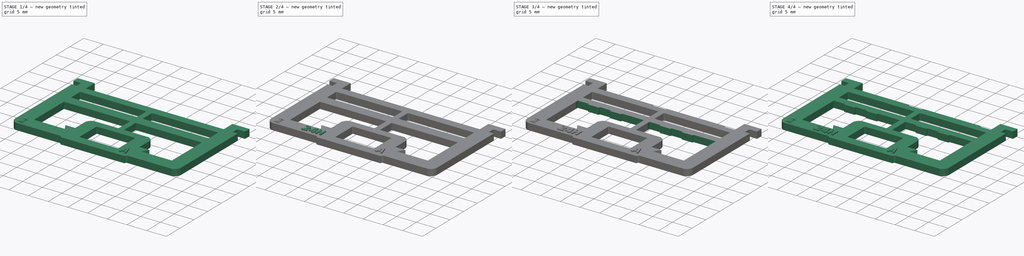
[diagram: build sequence overview — one tinted view per stage of 4, left to right]
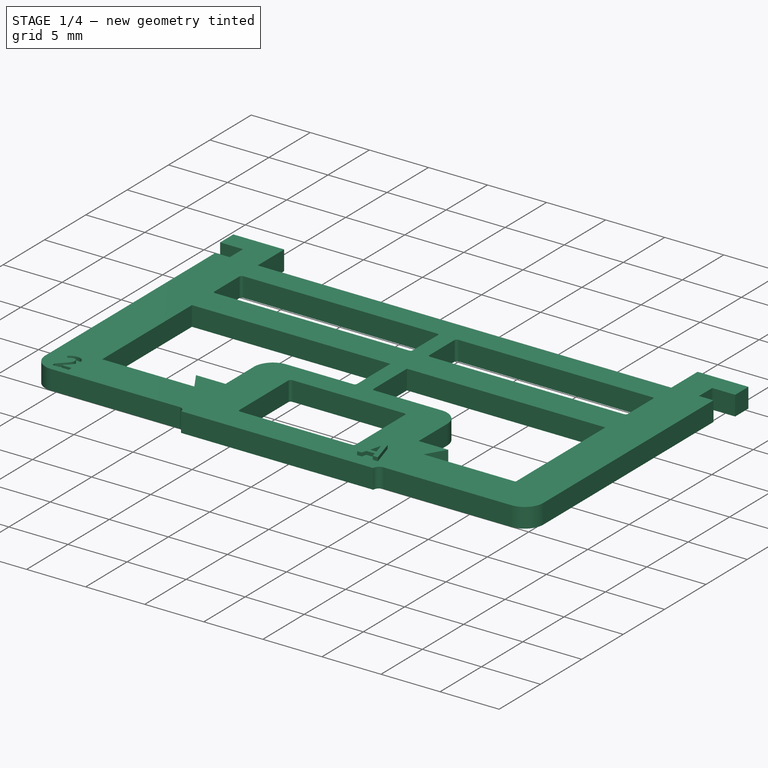
[diagram: stage 1 of 4 — iso view after this stage's code; geometry added in this stage tinted green]
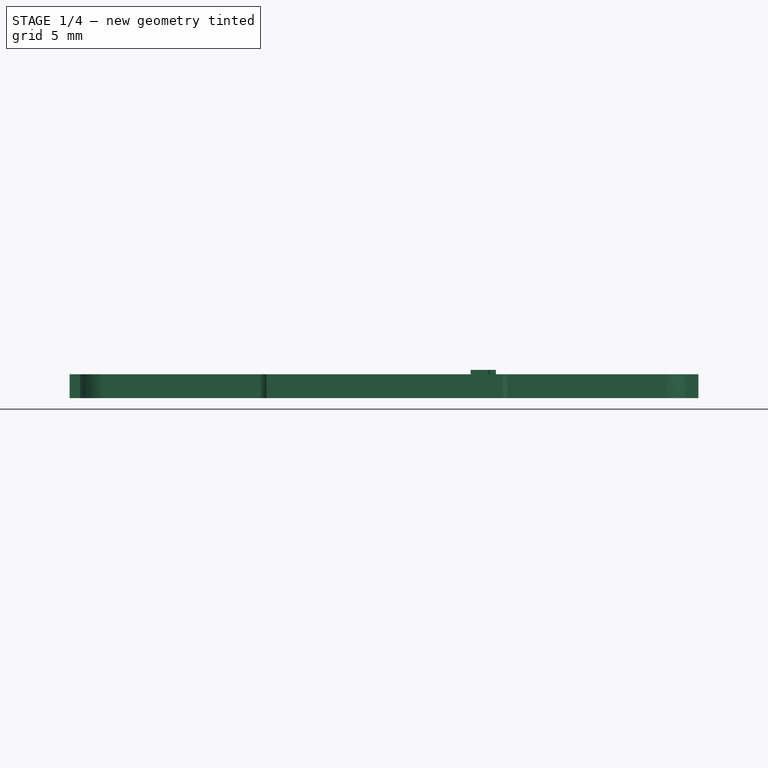
[diagram: stage 1 of 4 — front view after this stage's code; geometry added in this stage tinted green]
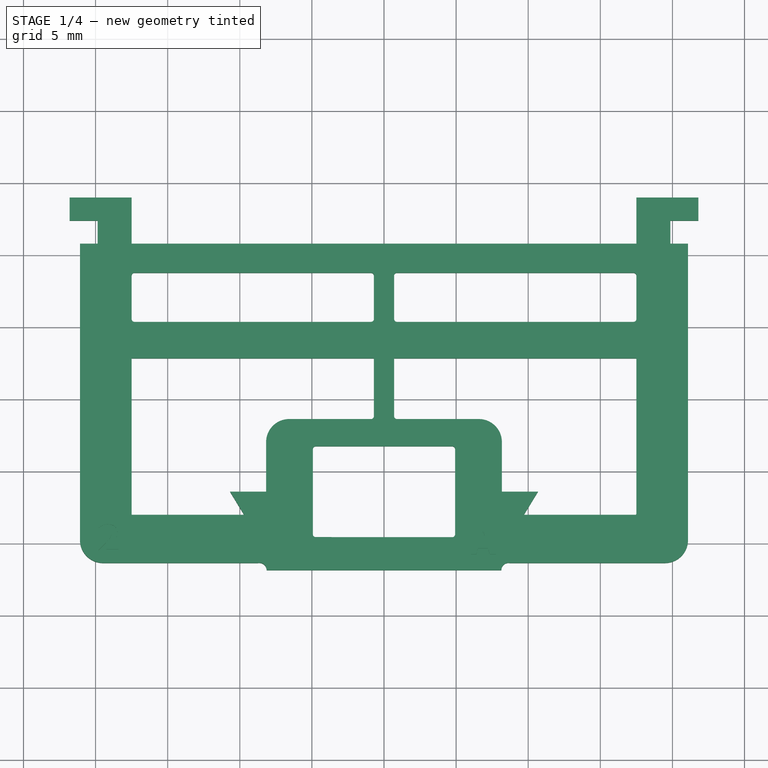
[diagram: stage 1 of 4 — top view after this stage's code; geometry added in this stage tinted green]
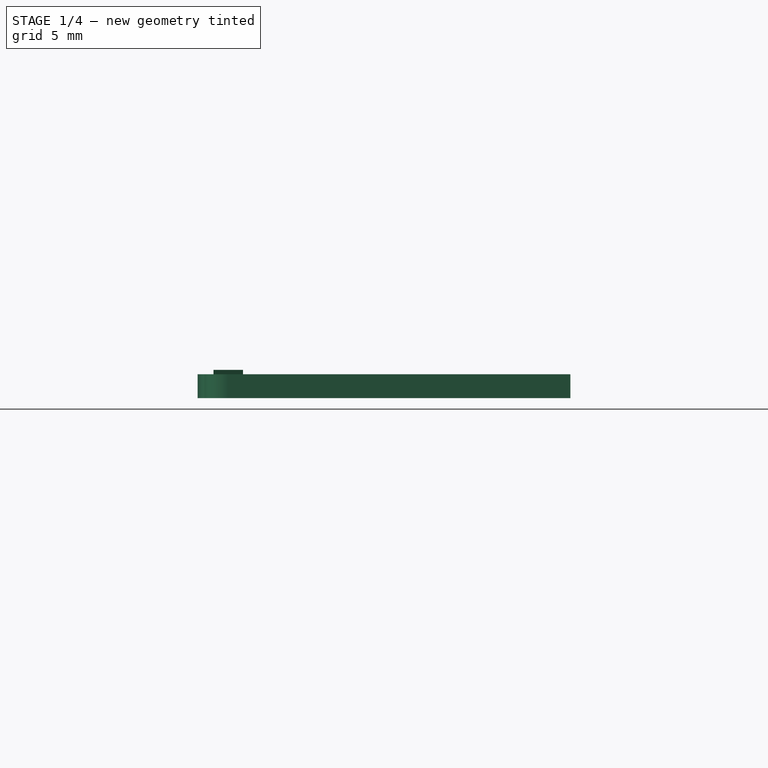
[diagram: stage 1 of 4 — right view after this stage's code; geometry added in this stage tinted green]
FCSTD DOCUMENT  (FreeCAD 0.21R33771 (Git))
Label: WE-P-19A130-137
License: All rights reserved
LicenseURL: http://en.wikipedia.org/wiki/All_rights_reserved
objects: Sketcher::SketchObject×16, PartDesign::Pocket×9, Part::Part2DObjectPython×3, PartDesign::Pad×3, Spreadsheet::Sheet×1, PartDesign::Body×1
note: 44 computed .brp shape members not serialized (recipe doc carries the construction recipe); baked Part::Feature solids carry a one-line shape summary decoded from their .brp

FEATURE [Sketcher::SketchObject] Sketch  label="BlankCardSketch"
  FullyConstrained = false
  MapMode = 5
  Support = -> [XY_Plane]
  sketch-geometry (90):
    g0: LineSegment StartX=21.082 StartY=10.79 StartZ=0 EndX=21.082 EndY=-9.78651 EndZ=0
    g1: ArcOfCircle CenterX=19.4824 CenterY=-9.75041 CenterZ=0 NormalX=0 NormalY=0 NormalZ=1 AngleXU=0 Radius=1.6 StartAngle=4.73496 EndAngle=6.26062
    g2: ArcOfCircle CenterX=-19.4824 CenterY=-9.75041 CenterZ=0 NormalX=0 NormalY=0 NormalZ=1 AngleXU=0 Radius=1.6 StartAngle=3.16416 EndAngle=4.68982
    g3: LineSegment StartX=-21.082 StartY=-9.78651 StartZ=0 EndX=-21.082 EndY=10.79 EndZ=0
    g4: LineSegment StartX=-21.082 StartY=10.79 StartZ=0 EndX=-19.86 EndY=10.79 EndZ=0
    g5: LineSegment StartX=-19.86 StartY=10.79 StartZ=0 EndX=-19.86 EndY=12.39 EndZ=0
    g6: LineSegment StartX=-19.86 StartY=12.39 StartZ=0 EndX=-21.8 EndY=12.39 EndZ=0
    g7: LineSegment StartX=-21.8 StartY=12.39 StartZ=0 EndX=-21.8 EndY=13.99 EndZ=0
    g8: LineSegment StartX=21.082 StartY=10.79 StartZ=0 EndX=19.86 EndY=10.79 EndZ=0
    g9: LineSegment StartX=19.86 StartY=10.79 StartZ=0 EndX=19.86 EndY=12.39 EndZ=0
    g10: LineSegment StartX=19.86 StartY=12.39 StartZ=0 EndX=21.8 EndY=12.39 EndZ=0
    g11: LineSegment StartX=21.8 StartY=12.39 StartZ=0 EndX=21.8 EndY=13.99 EndZ=0
    g12: LineSegment StartX=-21.8 StartY=13.99 StartZ=0 EndX=-17.5 EndY=13.99 EndZ=0
    g13: LineSegment StartX=21.8 StartY=13.99 StartZ=0 EndX=17.5 EndY=13.99 EndZ=0
    g14: LineSegment StartX=17.5 StartY=13.99 StartZ=0 EndX=-17.5 EndY=13.99 EndZ=0
    g15: LineSegment StartX=17.5 StartY=13.99 StartZ=0 EndX=17.5 EndY=10.79 EndZ=0
    g16: ArcOfCircle CenterX=-17.3 CenterY=8.57 CenterZ=0 NormalX=0 NormalY=0 NormalZ=1 AngleXU=0 Radius=0.2 StartAngle=1.5708 EndAngle=3.14159
    g17: LineSegment StartX=-17.3 StartY=8.77 StartZ=0 EndX=-0.9 EndY=8.77 EndZ=0
    g18: ArcOfCircle CenterX=-0.9 CenterY=8.57 CenterZ=0 NormalX=0 NormalY=0 NormalZ=1 AngleXU=0 Radius=0.2 StartAngle=2.3e-15 EndAngle=1.5708
    g19: LineSegment StartX=-0.7 StartY=8.57 StartZ=0 EndX=-0.7 EndY=5.57 EndZ=0
    g20: ArcOfCircle CenterX=-0.9 CenterY=5.57 CenterZ=0 NormalX=0 NormalY=0 NormalZ=1 AngleXU=0 Radius=0.2 StartAngle=4.71239 EndAngle=6.28319
    g21: LineSegment StartX=-0.9 StartY=5.37 StartZ=0 EndX=-17.3 EndY=5.37 EndZ=0
    g22: ArcOfCircle CenterX=-17.3 CenterY=5.57 CenterZ=0 NormalX=0 NormalY=0 NormalZ=1 AngleXU=0 Radius=0.2 StartAngle=3.14159 EndAngle=4.71239
    g23: LineSegment StartX=-17.5 StartY=5.57 StartZ=0 EndX=-17.5 EndY=8.57 EndZ=0
    g24: ArcOfCircle CenterX=0.9 CenterY=8.57 CenterZ=0 NormalX=0 NormalY=0 NormalZ=1 AngleXU=0 Radius=0.2 StartAngle=1.5708 EndAngle=3.14159
    g25: LineSegment StartX=0.9 StartY=8.77 StartZ=0 EndX=17.3 EndY=8.77 EndZ=0
    g26: ArcOfCircle CenterX=17.3 CenterY=8.57 CenterZ=0 NormalX=0 NormalY=0 NormalZ=1 AngleXU=0 Radius=0.2 StartAngle=-2.7e-15 EndAngle=1.5708
    g27: LineSegment StartX=17.5 StartY=8.57 StartZ=0 EndX=17.5 EndY=5.57 EndZ=0
    g28: ArcOfCircle CenterX=17.3 CenterY=5.57 CenterZ=0 NormalX=0 NormalY=0 NormalZ=1 AngleXU=0 Radius=0.2 StartAngle=4.71239 EndAngle=6.28319
    g29: LineSegment StartX=17.3 StartY=5.37 StartZ=0 EndX=0.9 EndY=5.37 EndZ=0
    g30: ArcOfCircle CenterX=0.9 CenterY=5.57 CenterZ=0 NormalX=0 NormalY=0 NormalZ=1 AngleXU=0 Radius=0.2 StartAngle=3.14159 EndAngle=4.71239
    g31: LineSegment StartX=0.7 StartY=5.57 StartZ=0 EndX=0.7 EndY=8.57 EndZ=0
    g32: ArcOfCircle CenterX=-4.73 CenterY=-3.45654 CenterZ=0 NormalX=0 NormalY=0 NormalZ=1 AngleXU=0 Radius=0.2 StartAngle=1.5708 EndAngle=3.14159
    g33: LineSegment StartX=-4.73 StartY=-3.25654 StartZ=0 EndX=4.73 EndY=-3.25654 EndZ=0
    g34: ArcOfCircle CenterX=4.73 CenterY=-3.45654 CenterZ=0 NormalX=0 NormalY=0 NormalZ=1 AngleXU=0 Radius=0.2 StartAngle=-9e-16 EndAngle=1.5708
    g35: LineSegment StartX=4.93 StartY=-3.45654 StartZ=0 EndX=4.93 EndY=-9.36361 EndZ=0
    g36: ArcOfCircle CenterX=4.73015 CenterY=-9.36361 CenterZ=0 NormalX=0 NormalY=0 NormalZ=1 AngleXU=0 Radius=0.199854 StartAngle=4.71166 EndAngle=6.28319
    g37: LineSegment StartX=4.73 StartY=-9.56346 StartZ=0 EndX=-4.73721 EndY=-9.55654 EndZ=0
    g38: ArcOfCircle CenterX=-4.73706 CenterY=-9.36361 CenterZ=0 NormalX=0 NormalY=0 NormalZ=1 AngleXU=0 Radius=0.192936 StartAngle=3.14159 EndAngle=4.71166
    g39: LineSegment StartX=-4.93 StartY=-9.36361 StartZ=0 EndX=-4.93 EndY=-3.45654 EndZ=0
    g40: LineSegment StartX=-8.14 StartY=-11.85 StartZ=0 EndX=8.14 EndY=-11.85 EndZ=0
    g41: LineSegment StartX=-19.5185 StartY=-11.35 StartZ=0 EndX=-8.71851 EndY=-11.35 EndZ=0
    g42: ArcOfCircle CenterX=-8.63996 CenterY=-11.8438 CenterZ=0 NormalX=0 NormalY=0 NormalZ=1 AngleXU=0 Radius=0.5 StartAngle=6.27077 EndAngle=8.01174
    g43: LineSegment StartX=19.5185 StartY=-11.35 StartZ=0 EndX=8.71851 EndY=-11.35 EndZ=0
    g44: LineSegment StartX=-17.5 StartY=10.79 StartZ=0 EndX=-17.5 EndY=8.57 EndZ=0
    g45: LineSegment StartX=-0.7 StartY=2.84 StartZ=0 EndX=-17.5 EndY=2.84 EndZ=0
    g46: ArcOfCircle CenterX=-17.4708 CenterY=-7.98077 CenterZ=0 NormalX=0 NormalY=0 NormalZ=1 AngleXU=0 Radius=0.02923 StartAngle=3.15203 EndAngle=4.71637
    g47: LineSegment StartX=-17.5 StartY=-7.98108 StartZ=0 EndX=-17.5 EndY=2.84 EndZ=0
    g48: LineSegment StartX=-0.7 StartY=2.84 StartZ=0 EndX=-0.7 EndY=-1.17157 EndZ=0
    g49: ArcOfCircle CenterX=-0.9 CenterY=-1.17157 CenterZ=0 NormalX=0 NormalY=0 NormalZ=1 AngleXU=0 Radius=0.2 StartAngle=4.83772 EndAngle=6.28319
    g50: LineSegment StartX=-0.875 StartY=-1.37 StartZ=0 EndX=-6.575 EndY=-1.37 EndZ=0
    g51: LineSegment StartX=-8.175 StartY=-6.41 StartZ=0 EndX=-8.175 EndY=-2.97 EndZ=0
    g52: ArcOfCircle CenterX=-6.575 CenterY=-2.97 CenterZ=0 NormalX=0 NormalY=0 NormalZ=1 AngleXU=0 Radius=1.6 StartAngle=1.5708 EndAngle=3.14159
    g53: LineSegment StartX=-17.4707 StartY=-8.01 StartZ=0 EndX=-9.70066 EndY=-8.01 EndZ=0
    g54: LineSegment StartX=-9.70066 StartY=-8.01 StartZ=0 EndX=-10.675 EndY=-6.41 EndZ=0
    g55: LineSegment StartX=-10.675 StartY=-6.41 StartZ=0 EndX=-8.175 EndY=-6.41 EndZ=0
    g56: LineSegment StartX=17.5 StartY=2.84 StartZ=0 EndX=17.5 EndY=-7.85518 EndZ=0
    g57: ArcOfCircle CenterX=17.3047 CenterY=-7.89836 CenterZ=0 NormalX=0 NormalY=0 NormalZ=1 AngleXU=0 Radius=0.2 StartAngle=5.69095 EndAngle=6.50078
    g58: ArcOfCircle CenterX=0.9 CenterY=-1.17157 CenterZ=0 NormalX=0 NormalY=0 NormalZ=1 AngleXU=0 Radius=0.2 StartAngle=3.14159 EndAngle=4.58706
    g59: LineSegment StartX=0.7 StartY=-1.17157 StartZ=0 EndX=0.7 EndY=2.84 EndZ=0
    g60: LineSegment StartX=17.4707 StartY=-8.01 StartZ=0 EndX=9.70066 EndY=-8.01 EndZ=0
    g61: LineSegment StartX=0.875 StartY=-1.37 StartZ=0 EndX=6.575 EndY=-1.37 EndZ=0
    g62: LineSegment StartX=6.575 StartY=-1.37 StartZ=0 EndX=8.175 EndY=-1.37 EndZ=0
    g63: LineSegment StartX=8.175 StartY=-1.37 StartZ=0 EndX=8.175 EndY=-2.97 EndZ=0
    g64: ArcOfCircle CenterX=6.575 CenterY=-2.97 CenterZ=0 NormalX=0 NormalY=0 NormalZ=1 AngleXU=0 Radius=1.6 StartAngle=0 EndAngle=1.5708
    g65: LineSegment StartX=8.175 StartY=-2.97 StartZ=0 EndX=8.175 EndY=-6.41 EndZ=0
    g66: LineSegment StartX=8.175 StartY=-6.41 StartZ=0 EndX=10.675 EndY=-6.41 EndZ=0
    g67: LineSegment StartX=10.675 StartY=-6.41 StartZ=0 EndX=9.70066 EndY=-8.01 EndZ=0
    g68: LineSegment StartX=-0.7 StartY=-1.17157 StartZ=0 EndX=0.7 EndY=-1.17157 EndZ=0
    g69: LineSegment StartX=-6.575 StartY=-1.37 StartZ=0 EndX=-8.175 EndY=-1.37 EndZ=0
    g70: LineSegment StartX=-8.175 StartY=-2.97 StartZ=0 EndX=-8.175 EndY=-1.37 EndZ=0
    g71: LineSegment StartX=-0.7 StartY=2.84 StartZ=0 EndX=0.7 EndY=2.84 EndZ=0
    g72: LineSegment StartX=-0.7 StartY=5.57 StartZ=0 EndX=0.7 EndY=5.57 EndZ=0
    g73: LineSegment StartX=-17.5 StartY=13.99 StartZ=0 EndX=-17.5 EndY=10.79 EndZ=0
    g74: LineSegment StartX=-17.5 StartY=10.79 StartZ=0 EndX=17.5 EndY=10.79 EndZ=0
    g75: LineSegment StartX=0.7 StartY=2.84 StartZ=0 EndX=17.5 EndY=2.84 EndZ=0
    g76: LineSegment StartX=-19.86 StartY=10.79 StartZ=0 EndX=-17.5 EndY=10.79 EndZ=0
    g77: LineSegment StartX=17.5 StartY=10.79 StartZ=0 EndX=19.86 EndY=10.79 EndZ=0
    g78: LineSegment StartX=-19.86 StartY=12.39 StartZ=0 EndX=19.86 EndY=12.39 EndZ=0
    g79: LineSegment StartX=17.5 StartY=10.79 StartZ=0 EndX=17.5 EndY=8.57 EndZ=0
    g80: LineSegment StartX=-9.70066 StartY=-8.01 StartZ=0 EndX=9.79934 EndY=-8.01 EndZ=0
    g81: LineSegment StartX=-8.175 StartY=-6.41 StartZ=0 EndX=8.175 EndY=-6.41 EndZ=0
    g82: LineSegment StartX=-19.5185 StartY=-11.35 StartZ=0 EndX=-21.082 EndY=-11.35 EndZ=0
    g83: LineSegment StartX=-21.082 StartY=-9.78651 StartZ=0 EndX=-21.082 EndY=-11.35 EndZ=0
    g84: LineSegment StartX=19.5185 StartY=-11.35 StartZ=0 EndX=21.082 EndY=-11.35 EndZ=0
    g85: LineSegment StartX=21.082 StartY=-9.78651 StartZ=0 EndX=21.082 EndY=-11.35 EndZ=0
    g86: LineSegment StartX=-8.71851 StartY=-11.35 StartZ=0 EndX=8.71851 EndY=-11.35 EndZ=0
    g87: ArcOfCircle CenterX=8.63996 CenterY=-11.8438 CenterZ=0 NormalX=0 NormalY=0 NormalZ=1 AngleXU=0 Radius=0.5 StartAngle=1.41304 EndAngle=3.15401
    g88: LineSegment StartX=0.875 StartY=-1.37 StartZ=0 EndX=0.875 EndY=-1.65252 EndZ=0
    g89: LineSegment StartX=-0.9 StartY=8.77 StartZ=0 EndX=0.9 EndY=8.77 EndZ=0
  constraints (227):
    c: Vertical(g3)
    c: Coincident(g4,g3)
    c: Horizontal(g4)
    c: Coincident(g5,g4)
    c: Vertical(g5)
    c: Coincident(g6,g5)
    c: Horizontal(g6)
    c: DistanceX(g6,g6) = 1.94
    c: Coincident(g7,g6)
    c: Vertical(g7)
    c: DistanceY(g7,g7) = 1.6
    c: DistanceX(g2,g0) = 42.164
    c: Coincident(g8,g0)
    c: Horizontal(g8)
    c: Coincident(g9,g8)
    c: Vertical(g9)
    c: Equal(g3,g0)
    c: Coincident(g10,g9)
    c: Horizontal(g10)
    c: Equal(g6,g10)
    c: Coincident(g11,g10)
    c: Vertical(g11)
    c: Coincident(g12,g7)
    c: Horizontal(g12)
    c: DistanceX(g12,g12) = 4.3
    c: Coincident(g13,g11)
    c: Horizontal(g13)
    c: Coincident(g14,g13)
    c: Coincident(g14,g12)
    c: Coincident(g15,g13)
    c: Vertical(g15)
    c: Tangent(g16,g17) = 1.5708
    c: Tangent(g17,g18) = 1.5708
    c: Tangent(g18,g19) = 1.5708
    c: Tangent(g19,g20) = 1.5708
    c: Tangent(g20,g21) = 1.5708
    c: Tangent(g21,g22) = 1.5708
    c: Tangent(g22,g23) = 1.5708
    c: Tangent(g23,g16) = 1.5708
    c: Horizontal(g17)
    c: Horizontal(g21)
    c: Vertical(g19)
    c: Vertical(g23)
    c: Equal(g16,g18)
    c: Equal(g18,g20)
    c: Equal(g20,g22)
    c: DistanceX(g16,g18) = 16.8
    c: Radius(g16) = 0.2
    c: Tangent(g24,g25) = 1.5708
    c: Tangent(g25,g26) = 1.5708
    c: Tangent(g26,g27) = 1.5708
    c: Tangent(g27,g28) = 1.5708
    c: Tangent(g28,g29) = 1.5708
    c: Tangent(g29,g30) = 1.5708
    c: Tangent(g30,g31) = 1.5708
    c: Tangent(g31,g24) = 1.5708
    c: Horizontal(g25)
    c: Horizontal(g29)
    c: Vertical(g27)
    c: Equal(g24,g26)
    c: Equal(g26,g28)
    c: Equal(g28,g30)
    c: Equal(g16,g24)
    c: DistanceX(g24,g26) = 16.8
    c: Tangent(g32,g33) = 1.5708
    c: Tangent(g33,g34) = 1.5708
    c: Tangent(g34,g35) = 1.5708
    c: Tangent(g35,g36) = 1.5708
    c: Tangent(g36,g37) = 1.5708
    c: Tangent(g37,g38) = 1.5708
    c: Tangent(g38,g39) = 1.5708
    c: Tangent(g39,g32) = 1.5708
    c: Horizontal(g33)
    c: Vertical(g35)
    c: Vertical(g39)
    c: DistanceX(g32,g34) = 9.86
    c: Equal(g32,g16)
    c: Symmetric(g38,g35,g-2)
    c: Symmetric(g40,g40,g-2)
    c: Coincident(g42,g40)
    c: Coincident(g42,g41)
    c: Radius(g42) = 0.5
    c: Coincident(g43,g1)
    c: Horizontal(g43)
    c: Equal(g41,g43)
    c: Coincident(g44,g16)
    c: Vertical(g44)
    c: Vertical(g47)
    c: Tangent(g48,g49) = 1.5708
    c: Vertical(g48)
    c: Vertical(g51)
    c: Coincident(g52,g51)
    c: Coincident(g52,g50)
    c: Radius(g52) = 1.6
    c: Coincident(g54,g53)
    c: Coincident(g55,g54)
    c: Horizontal(g55)
    c: Coincident(g51,g55)
    c: DistanceX(g55,g55) = 2.5
    c: Tangent(g58,g59) = 1.5708
    c: Vertical(g56)
    c: Vertical(g59)
    c: Equal(g57,g58)
    c: Equal(g48,g59)
    c: Coincident(g61,g58)
    c: Horizontal(g61)
    c: Coincident(g62,g61)
    c: Horizontal(g62)
    c: Coincident(g63,g62)
    c: Vertical(g63)
    c: Coincident(g64,g63)
    c: Coincident(g64,g61)
    c: Coincident(g65,g64)
    c: Vertical(g65)
    c: Coincident(g66,g65)
    c: Horizontal(g66)
    c: DistanceX(g66,g66) = 2.5
    c: Coincident(g67,g66)
    c: Coincident(g67,g60)
    c: Coincident(g68,g48)
    c: Coincident(g68,g59)
    c: Coincident(g69,g50)
    c: Horizontal(g69)
    c: Coincident(g70,g51)
    c: Vertical(g70)
    c: Coincident(g69,g70)
    c: DistanceY(g70,g70) = 1.6
    c: Coincident(g72,g19)
    c: Coincident(g72,g30)
    c: Equal(g49,g58)
    c: Vertical(g73)
    c: Coincident(g74,g73)
    c: Coincident(g74,g15)
    c: Horizontal(g74)
    c: Coincident(g44,g73)
    c: Coincident(g76,g4)
    c: Coincident(g76,g73)
    c: Coincident(g77,g15)
    c: Coincident(g77,g8)
    c: Coincident(g78,g5)
    c: Coincident(g78,g9)
    c: Radius(g46) = 0.02923
    c: DistanceX(g53,g53) = 7.77
    c: DistanceX(g60,g60) = 7.77
    c: DistanceY(g53,g54) = 1.6
    c: Coincident(g79,g15)
    c: DistanceX(g74,g74) = 35
    c: Coincident(g26,g79)
    c: Coincident(g81,g51)
    c: Coincident(g81,g65)
    c: Symmetric(g30,g19,g-2)
    c: Coincident(g3,g2)
    c: Vertical(g83)
    c: Coincident(g84,g85)
    c: Horizontal(g84)
    c: Coincident(g84,g1)
    c: Coincident(g85,g0)
    c: Coincident(g1,g0)
    c: Equal(g1,g2)
    c: Coincident(g41,g2)
    c: Coincident(g83,g2)
    c: Coincident(g82,g83)
    c: Coincident(g2,g82)
    c: Horizontal(g41)
    c: Radius(g2) = 1.6
    c: Vertical(g0)
    c: Coincident(g86,g41)
    c: Coincident(g86,g43)
    c: DistanceY(g40,g41) = 0.5
    c: DistanceY(g41,g53) = 3.34
    c: Coincident(g80,g53)
    c: Horizontal(g80)
    c: Horizontal(g53)
    c: Horizontal(g60)
    c: Coincident(g46,g53)
    c: Coincident(g47,g46)
    c: Horizontal(g45)
    c: Coincident(g57,g60)
    c: Coincident(g56,g57)
    c: Coincident(g45,g47)
    c: Coincident(g87,g40)
    c: Coincident(g87,g43)
    c: Equal(g87,g42)
    c: Vertical(g31)
    c: Coincident(g45,g48)
    c: Coincident(g75,g59)
    c: Horizontal(g75)
    c: Coincident(g56,g75)
    c: DistanceY(g45,g21) = 2.53
    c: Horizontal(g76)
    c: Coincident(g50,g49)
    c: Horizontal(g50)
    c: DistanceY(g21,g16) = 3.4
    c: Coincident(g73,g12)
    c: DistanceY(g5,g5) = 1.6
    c: DistanceX(g81,g81) = 16.35
    c: DistanceX(g80,g80) = 19.5
    c: DistanceX(g41,g41) = 10.8
    c: Equal(g85,g84)
    c: Equal(g84,g82)
    c: Equal(g82,g83)
    c: DistanceX(g40,g40) = 16.28
    c: Coincident(g45,g71)
    c: Coincident(g71,g59)
    c: Symmetric(g43,g41,g-2)
    c: Symmetric(g53,g60,g-2)
    c: Symmetric(g51,g65,g-2)
    c: Symmetric(g48,g58,g-2)
    c: Radius(g49) = 0.2
    c: Coincident(g88,g58)
    c: DistanceX(g50,g50) = 5.7
    c: Equal(g62,g63)
    c: Equal(g64,g52)
    c: Equal(g70,g69)
    c: Equal(g69,g62)
    c: Equal(g50,g61)
    c: DistanceY(g37,g32) = 6.3
    c: Symmetric(g33,g36,g81)
    c: Symmetric(g12,g13,g-2)
    c: Symmetric(g5,g9,g-2)
    c: Symmetric(g2,g0,g-2)
    c: Coincident(g89,g17)
    c: Coincident(g89,g24)
    c: Horizontal(g89)
    c: DistanceY(g45,g73) = 7.95
    c: DistanceY(g46,g73) = 18.8
    c: DistanceY(g-1,g59) = 2.84
FEATURE [Part::Part2DObjectPython] ShapeString  label="RelayDatecodeShapeString"  # Draft 2D object (typed FeaturePython)
  FontFile = <path>
  MakeFace = true
  Placement = pos=(-20,-10.75,1.66) rot=(0,0,1;0rad)
  Size = 2.5
  String =     24H
  Tracking = 0
  expr: .Placement.Base.z = Spreadsheet.CardThickness
  expr: String = <<%7s>> % Spreadsheet.RelayDatecode
FEATURE [Part::Part2DObjectPython] ShapeString001  label="RelayTypeShapeString"  # Draft 2D object (typed FeaturePython)
  FontFile = <path>
  MakeFace = true
  Placement = pos=(6,-10.75,1.66) rot=(0,0,1;0rad)
  Size = 2.5
  String = A
  Tracking = 0
  expr: .Placement.Base.z = Spreadsheet.CardThickness
  expr: String = Spreadsheet.RelayType
FEATURE [Sketcher::SketchObject] Sketch002  label="BreakNo2Sketch"
  AttachmentOffset = pos=(0,0,1.66) rot=(0,0,1;0rad)
  FullyConstrained = true
  MapMode = 5
  Placement = pos=(0,0,1.66) rot=(0,0,1;0rad)
  Support = -> [XY_Plane]
  expr: .AttachmentOffset.Base.z = Spreadsheet.CardThickness
  expr: Constraints[41] = Spreadsheet.EB_Cutout
  expr: Constraints[4] = Spreadsheet.B_Cutout
  expr: Constraints[63] = Spreadsheet.EB_Cutout
  sketch-geometry (31):
    g0: LineSegment StartX=-14.7 StartY=3.5 StartZ=0 EndX=-17.5 EndY=3.5 EndZ=0
    g1: LineSegment StartX=-17.5 StartY=3.5 StartZ=0 EndX=-17.5 EndY=2.84 EndZ=0
    g2: LineSegment StartX=-11.9 StartY=3.5 StartZ=0 EndX=-9.1 EndY=3.5 EndZ=0
    g3: LineSegment StartX=-6.3 StartY=3.5 StartZ=0 EndX=-0.7 EndY=3.5 EndZ=0
    g4: LineSegment StartX=-0.7 StartY=3.5 StartZ=0 EndX=-0.7 EndY=2.84 EndZ=0
    g5: LineSegment StartX=3.5 StartY=3.5 StartZ=0 EndX=0.7 EndY=3.5 EndZ=0
    g6: LineSegment StartX=0.7 StartY=3.5 StartZ=0 EndX=0.7 EndY=2.84 EndZ=0
    g7: LineSegment StartX=6.3 StartY=3.5 StartZ=0 EndX=9.1 EndY=3.5 EndZ=0
    g8: LineSegment StartX=11.9 StartY=3.5 StartZ=0 EndX=17.5 EndY=3.5 EndZ=0
    g9: LineSegment StartX=17.5 StartY=3.5 StartZ=0 EndX=17.5 EndY=2.84 EndZ=0
    g10: LineSegment StartX=-14.7 StartY=3.17 StartZ=0 EndX=-11.9 EndY=3.17 EndZ=0
    g11: LineSegment StartX=-17.5 StartY=2.84 StartZ=0 EndX=-0.7 EndY=2.84 EndZ=0
    g12: LineSegment StartX=-14.7 StartY=3.5 StartZ=0 EndX=-14.7 EndY=3.17 EndZ=0
    g13: LineSegment StartX=-11.9 StartY=3.17 StartZ=0 EndX=-11.9 EndY=3.5 EndZ=0
    g14: LineSegment StartX=-9.1 StartY=3.5 StartZ=0 EndX=-9.1 EndY=3.17 EndZ=0
    g15: LineSegment StartX=-9.1 StartY=3.17 StartZ=0 EndX=-6.3 EndY=3.17 EndZ=0
    g16: LineSegment StartX=-6.3 StartY=3.17 StartZ=0 EndX=-6.3 EndY=3.5 EndZ=0
    g17: LineSegment StartX=3.5 StartY=3.17 StartZ=0 EndX=6.3 EndY=3.17 EndZ=0
    g18: LineSegment StartX=3.5 StartY=3.5 StartZ=0 EndX=3.5 EndY=3.17 EndZ=0
    g19: LineSegment StartX=6.3 StartY=3.17 StartZ=0 EndX=6.3 EndY=3.5 EndZ=0
    g20: LineSegment StartX=6.3 StartY=3.17 StartZ=0 EndX=9.1 EndY=3.17 EndZ=0
    g21: LineSegment StartX=9.1 StartY=3.17 StartZ=0 EndX=11.9 EndY=3.17 EndZ=0
    g22: LineSegment StartX=9.1 StartY=3.5 StartZ=0 EndX=9.1 EndY=3.17 EndZ=0
    g23: LineSegment StartX=11.9 StartY=3.17 StartZ=0 EndX=11.9 EndY=3.5 EndZ=0
    g24: LineSegment StartX=-0.7 StartY=2.84 StartZ=0 EndX=0.7 EndY=2.84 EndZ=0
    g25: LineSegment StartX=-14.7 StartY=3.5 StartZ=0 EndX=-11.9 EndY=3.5 EndZ=0
    g26: LineSegment StartX=3.5 StartY=3.5 StartZ=0 EndX=6.3 EndY=3.5 EndZ=0
    g27: LineSegment StartX=9.1 StartY=3.5 StartZ=0 EndX=11.9 EndY=3.5 EndZ=0
    g28: LineSegment StartX=0.7 StartY=2.84 StartZ=0 EndX=17.5 EndY=2.84 EndZ=0
    g29: LineSegment StartX=-11.9 StartY=3.17 StartZ=0 EndX=-9.1 EndY=3.17 EndZ=0
    g30: LineSegment StartX=-9.1 StartY=3.5 StartZ=0 EndX=-6.3 EndY=3.5 EndZ=0
  constraints (85):
    c: DistanceX(g4,g-1) = 0.7
    c: Coincident(g0,g1)
    c: Horizontal(g0)
    c: Vertical(g1)
    c: DistanceY(g1,g1) = 0.66
    c: DistanceX(g0,g0) = 2.8
    c: Horizontal(g2)
    c: Equal(g2,g0)
    c: Coincident(g3,g4)
    c: Horizontal(g3)
    c: Vertical(g4)
    c: Coincident(g5,g6)
    c: Horizontal(g5)
    c: Vertical(g6)
    c: Horizontal(g7)
    c: Equal(g7,g0)
    c: Coincident(g8,g9)
    c: Horizontal(g8)
    c: Vertical(g9)
    c: DistanceY(g-1,g4) = 2.84
    c: DistanceX(g-1,g6) = 0.7
    c: Symmetric(g1,g9,g-2)
    c: Equal(g6,g1)
    c: Horizontal(g10)
    c: Equal(g10,g0)
    c: Coincident(g11,g1)
    c: Coincident(g11,g4)
    c: Horizontal(g11)
    c: Coincident(g12,g0)
    c: Coincident(g12,g10)
    c: Vertical(g12)
    c: Coincident(g13,g10)
    c: Coincident(g13,g2)
    c: Vertical(g13)
    c: Coincident(g14,g2)
    c: Coincident(g15,g14)
    c: Horizontal(g15)
    c: Coincident(g16,g3)
    c: Vertical(g16)
    c: Equal(g15,g0)
    c: Coincident(g15,g16)
    c: DistanceY(g1,g10) = 0.33
    c: Horizontal(g17)
    c: Equal(g17,g5)
    c: Coincident(g18,g5)
    c: Coincident(g18,g17)
    c: Vertical(g18)
    c: Coincident(g19,g17)
    c: Coincident(g19,g7)
    c: Vertical(g19)
    c: Coincident(g20,g17)
    c: Horizontal(g20)
    c: Coincident(g21,g20)
    c: Horizontal(g21)
    c: Coincident(g22,g7)
    c: Coincident(g22,g21)
    c: Vertical(g22)
    c: Coincident(g23,g21)
    c: Coincident(g23,g8)
    c: Vertical(g23)
    c: Equal(g21,g7)
    c: DistanceX(g6,g9) = 16.8
    c: Equal(g6,g4)
    c: DistanceY(g6,g17) = 0.33
    c: Equal(g5,g0)
    c: Coincident(g24,g4)
    c: Coincident(g24,g6)
    c: Coincident(g25,g0)
    c: Coincident(g25,g2)
    c: Horizontal(g25)
    c: Coincident(g26,g5)
    c: Coincident(g26,g7)
    c: Horizontal(g26)
    c: Coincident(g27,g7)
    c: Coincident(g27,g8)
    c: Horizontal(g27)
    c: Coincident(g28,g6)
    c: Coincident(g28,g9)
    c: Horizontal(g28)
    c: Coincident(g29,g10)
    c: Coincident(g29,g14)
    c: Horizontal(g29)
    c: Coincident(g30,g2)
    c: Coincident(g30,g3)
    c: Equal(g13,g14)
FEATURE [Sketcher::SketchObject] Sketch003  label="MakeNo2Sketch"
  AttachmentOffset = pos=(0,0,1.66) rot=(0,0,1;0rad)
  FullyConstrained = true
  MapMode = 5
  Placement = pos=(0,0,1.66) rot=(0,0,1;0rad)
  Support = -> [XY_Plane]
  expr: .AttachmentOffset.Base.z = Spreadsheet.CardThickness
  expr: Constraints[14] = Spreadsheet.EM_Cutout
  sketch-geometry (10):
    g0: LineSegment StartX=-17.5 StartY=10.79 StartZ=0 EndX=17.5 EndY=10.79 EndZ=0
    g1: LineSegment StartX=0 StartY=0 StartZ=0 EndX=0 EndY=10.79 EndZ=0
    g2: LineSegment StartX=0 StartY=10.79 StartZ=0 EndX=-3.5 EndY=10.79 EndZ=0
    g3: LineSegment StartX=-3.5 StartY=10.79 StartZ=0 EndX=-3.5 EndY=10.46 EndZ=0
    g4: LineSegment StartX=-3.5 StartY=10.46 StartZ=0 EndX=0 EndY=10.46 EndZ=0
    g5: LineSegment StartX=0 StartY=10.46 StartZ=0 EndX=0 EndY=10.79 EndZ=0
    g6: LineSegment StartX=17.5 StartY=10.79 StartZ=0 EndX=14.7 EndY=10.79 EndZ=0
    g7: LineSegment StartX=14.7 StartY=10.79 StartZ=0 EndX=14.7 EndY=10.46 EndZ=0
    g8: LineSegment StartX=14.7 StartY=10.46 StartZ=0 EndX=17.5 EndY=10.46 EndZ=0
    g9: LineSegment StartX=17.5 StartY=10.46 StartZ=0 EndX=17.5 EndY=10.79 EndZ=0
  constraints (28):
    c: Symmetric(g0,g0,g-2)
    c: Coincident(g1,g-1)
    c: PointOnObject(g1,g0)
    c: Vertical(g1)
    c: Coincident(g2,g3)
    c: Coincident(g3,g4)
    c: Coincident(g4,g5)
    c: Coincident(g5,g2)
    c: Horizontal(g2)
    c: Horizontal(g4)
    c: Vertical(g3)
    c: Vertical(g5)
    c: Coincident(g2,g1)
    c: DistanceX(g4,g4) = 3.5
    c: DistanceY(g3,g3) = 0.33
    c: Coincident(g6,g7)
    c: Coincident(g7,g8)
    c: Coincident(g8,g9)
    c: Coincident(g9,g6)
    c: Horizontal(g6)
    c: Horizontal(g8)
    c: Vertical(g7)
    c: Vertical(g9)
    c: Coincident(g6,g0)
    c: DistanceX(g8,g8) = 2.8
    c: Equal(g7,g3)
    c: DistanceY(g1,g1) = 10.79
    c: DistanceX(g1,g6) = 17.5
FEATURE [Sketcher::SketchObject] Sketch004  label="P-19A130"
  AttachmentOffset = pos=(0,0,1.66) rot=(0,0,1;0rad)
  FullyConstrained = true
  MapMode = 5
  Placement = pos=(0,0,1.66) rot=(0,0,1;0rad)
  Support = -> [XY_Plane]
  expr: .AttachmentOffset.Base.z = Spreadsheet.CardThickness
  expr: Constraints[26] = Spreadsheet.B_Cutout
  sketch-geometry (10):
    g0: LineSegment StartX=-0.7 StartY=3.5 StartZ=0 EndX=-17.4998 EndY=3.5 EndZ=0
    g1: LineSegment StartX=-0.7 StartY=3.5 StartZ=0 EndX=-0.7 EndY=2.84 EndZ=0
    g2: LineSegment StartX=0.7 StartY=2.84 StartZ=0 EndX=17.4998 EndY=2.84 EndZ=0
    g3: LineSegment StartX=17.4998 StartY=3.5 StartZ=0 EndX=0.7 EndY=3.5 EndZ=0
    g4: LineSegment StartX=0.7 StartY=3.5 StartZ=0 EndX=0.7 EndY=2.84 EndZ=0
    g5: LineSegment StartX=17.4998 StartY=3.5 StartZ=0 EndX=17.4998 EndY=2.84 EndZ=0
    g6: LineSegment StartX=-17.4998 StartY=3.5 StartZ=0 EndX=-17.4998 EndY=2.84 EndZ=0
    g7: LineSegment StartX=-17.4998 StartY=2.84 StartZ=0 EndX=-0.7 EndY=2.84 EndZ=0
    g8: LineSegment StartX=-0.7 StartY=3.5 StartZ=0 EndX=0.7 EndY=3.5 EndZ=0
    g9: LineSegment StartX=-0.7 StartY=2.84 StartZ=0 EndX=0.7 EndY=2.84 EndZ=0
  constraints (27):
    c: DistanceX(g1,g-1) = 0.7
    c: DistanceX(g-1,g2) = 0.7
    c: Horizontal(g0)
    c: Vertical(g1)
    c: Coincident(g3,g4)
    c: Coincident(g4,g2)
    c: Horizontal(g3)
    c: Vertical(g4)
    c: Vertical(g5)
    c: Coincident(g0,g1)
    c: Coincident(g3,g5)
    c: Coincident(g2,g5)
    c: DistanceY(g-1,g1) = 2.84
    c: Coincident(g6,g0)
    c: Vertical(g6)
    c: Coincident(g7,g6)
    c: Coincident(g7,g1)
    c: Horizontal(g7)
    c: Equal(g5,g4)
    c: Coincident(g8,g0)
    c: Coincident(g8,g3)
    c: Coincident(g9,g1)
    c: Coincident(g9,g2)
    c: Horizontal(g9)
    c: Equal(g1,g6)
    c: Symmetric(g0,g3,g-2)
    c: DistanceY(g6,g6) = 0.66
FEATURE [Part::Part2DObjectPython] ShapeString002  label="CardNo"  # Draft 2D object (typed FeaturePython)
  FontFile = <path>
  MakeFace = true
  Placement = pos=(-20,-10.75,1.66) rot=(0,0,1;0rad)
  Size = 2.5
  String = 2
  Tracking = 0
  expr: .Placement.Base.z = Spreadsheet.CardThickness
  expr: String = Spreadsheet.CardNo
FEATURE [Sketcher::SketchObject] Sketch007  label="MakeNo5Sketch"
  AttachmentOffset = pos=(0,0,1.66) rot=(0,0,1;0rad)
  FullyConstrained = true
  MapMode = 2
  Placement = pos=(0,0,1.66) rot=(0,0,1;0rad)
  Support = -> [XY_Plane]
  expr: .AttachmentOffset.Base.z = Spreadsheet.CardThickness
  expr: Constraints[28] = Spreadsheet.EM_Cutout
  sketch-geometry (11):
    g0: LineSegment StartX=-6.3 StartY=10.79 StartZ=0 EndX=6.3 EndY=10.79 EndZ=0
    g1: LineSegment StartX=0 StartY=0 StartZ=0 EndX=0 EndY=10.79 EndZ=0
    g2: LineSegment StartX=0 StartY=10.79 StartZ=0 EndX=-6.3 EndY=10.79 EndZ=0
    g3: LineSegment StartX=-6.3 StartY=10.79 StartZ=0 EndX=-6.3 EndY=10.46 EndZ=0
    g4: LineSegment StartX=-6.3 StartY=10.46 StartZ=0 EndX=0 EndY=10.46 EndZ=0
    g5: LineSegment StartX=0 StartY=10.46 StartZ=0 EndX=0 EndY=10.79 EndZ=0
    g6: LineSegment StartX=6.3 StartY=10.79 StartZ=0 EndX=3.5 EndY=10.79 EndZ=0
    g7: LineSegment StartX=3.5 StartY=10.79 StartZ=0 EndX=3.5 EndY=10.46 EndZ=0
    g8: LineSegment StartX=3.5 StartY=10.46 StartZ=0 EndX=6.3 EndY=10.46 EndZ=0
    g9: LineSegment StartX=6.3 StartY=10.46 StartZ=0 EndX=6.3 EndY=10.79 EndZ=0
    g10: LineSegment StartX=0 StartY=10.46 StartZ=0 EndX=3.5 EndY=10.46 EndZ=0
  constraints (30):
    c: Symmetric(g0,g0,g-2)
    c: Coincident(g1,g-1)
    c: PointOnObject(g1,g0)
    c: Vertical(g1)
    c: Coincident(g2,g3)
    c: Coincident(g3,g4)
    c: Coincident(g4,g5)
    c: Coincident(g5,g2)
    c: Horizontal(g2)
    c: Horizontal(g4)
    c: Vertical(g3)
    c: Vertical(g5)
    c: Coincident(g2,g1)
    c: DistanceX(g4,g4) = 6.3
    c: Coincident(g6,g7)
    c: Coincident(g7,g8)
    c: Coincident(g8,g9)
    c: Coincident(g9,g6)
    c: Horizontal(g6)
    c: Horizontal(g8)
    c: Vertical(g7)
    c: Vertical(g9)
    c: Coincident(g6,g0)
    c: DistanceX(g8,g8) = 2.8
    c: Coincident(g10,g4)
    c: DistanceX(g10,g10) = 3.5
    c: Coincident(g7,g10)
    c: DistanceY(g1,g1) = 10.79
    c: DistanceY(g3,g3) = 0.33
    c: Equal(g7,g3)
FEATURE [Sketcher::SketchObject] Sketch008  label="MakeNo6Sketch"
  AttachmentOffset = pos=(0,0,1.66) rot=(0,0,1;0rad)
  FullyConstrained = true
  MapMode = 5
  Placement = pos=(0,0,1.66) rot=(0,0,1;0rad)
  Support = -> [XY_Plane]
  expr: .AttachmentOffset.Base.z = Spreadsheet.CardThickness
  expr: Constraints[60] = Spreadsheet.EM_Cutout
  sketch-geometry (22):
    g0: LineSegment StartX=-17.5 StartY=10.785 StartZ=0 EndX=-17.5 EndY=10.455 EndZ=0
    g1: LineSegment StartX=-17.5 StartY=10.455 StartZ=0 EndX=-14.7 EndY=10.455 EndZ=0
    g2: LineSegment StartX=-14.7 StartY=10.455 StartZ=0 EndX=-14.7 EndY=10.785 EndZ=0
    g3: LineSegment StartX=-9.1 StartY=10.785 StartZ=0 EndX=-11.9 EndY=10.785 EndZ=0
    g4: LineSegment StartX=-11.9 StartY=10.785 StartZ=0 EndX=-11.9 EndY=10.455 EndZ=0
    g5: LineSegment StartX=-11.9 StartY=10.455 StartZ=0 EndX=-9.1 EndY=10.455 EndZ=0
    g6: LineSegment StartX=-9.1 StartY=10.455 StartZ=0 EndX=-9.1 EndY=10.785 EndZ=0
    g7: LineSegment StartX=-14.7 StartY=10.455 StartZ=0 EndX=-11.9 EndY=10.455 EndZ=0
    g8: LineSegment StartX=-17.5 StartY=10.785 StartZ=0 EndX=-14.7 EndY=10.785 EndZ=0
    g9: LineSegment StartX=-6.2e-15 StartY=10.785 StartZ=0 EndX=6.3 EndY=10.785 EndZ=0
    g10: LineSegment StartX=6.3 StartY=10.785 StartZ=0 EndX=9.1 EndY=10.785 EndZ=0
    g11: LineSegment StartX=9.1 StartY=10.785 StartZ=0 EndX=9.1 EndY=10.455 EndZ=0
    g12: LineSegment StartX=9.1 StartY=10.455 StartZ=0 EndX=6.3 EndY=10.455 EndZ=0
    g13: LineSegment StartX=6.3 StartY=10.455 StartZ=0 EndX=6.3 EndY=10.785 EndZ=0
    g14: LineSegment StartX=9.1 StartY=10.455 StartZ=0 EndX=11.9 EndY=10.455 EndZ=0
    g15: LineSegment StartX=11.9 StartY=10.455 StartZ=0 EndX=14.7 EndY=10.455 EndZ=0
    g16: LineSegment StartX=14.7 StartY=10.455 StartZ=0 EndX=14.7 EndY=10.785 EndZ=0
    g17: LineSegment StartX=14.7 StartY=10.785 StartZ=0 EndX=11.9 EndY=10.785 EndZ=0
    g18: LineSegment StartX=11.9 StartY=10.785 StartZ=0 EndX=11.9 EndY=10.455 EndZ=0
    g19: LineSegment StartX=-9.1 StartY=10.455 StartZ=0 EndX=6.3 EndY=10.455 EndZ=0
    g20: LineSegment StartX=-6.2e-15 StartY=10.785 StartZ=0 EndX=0 EndY=0 EndZ=0
    g21: LineSegment StartX=14.7 StartY=10.785 StartZ=0 EndX=17.5 EndY=10.785 EndZ=0
  constraints (61):
    c: Horizontal(g1)
    c: Vertical(g0)
    c: Vertical(g2)
    c: Horizontal(g3)
    c: Horizontal(g5)
    c: Vertical(g4)
    c: Vertical(g6)
    c: DistanceX(g5,g5) = 2.8
    c: DistanceX(g7,g7) = 2.8
    c: Horizontal(g7)
    c: Horizontal(g8)
    c: Equal(g2,g4)
    c: DistanceX(g1,g1) = 2.8
    c: Horizontal(g9)
    c: Horizontal(g10)
    c: Horizontal(g12)
    c: Vertical(g11)
    c: Vertical(g13)
    c: Horizontal(g14)
    c: Horizontal(g15)
    c: Horizontal(g17)
    c: Vertical(g16)
    c: Vertical(g18)
    c: Equal(g12,g14)
    c: Equal(g12,g15)
    c: Equal(g13,g18)
    c: DistanceX(g12,g12) = 2.8
    c: DistanceX(g9,g10) = 6.3
    c: DistanceX(g3,g9) = 9.1
    c: Coincident(g19,g5)
    c: Coincident(g19,g12)
    c: Horizontal(g19)
    c: Coincident(g8,g0)
    c: Coincident(g0,g1)
    c: Coincident(g2,g1)
    c: Coincident(g7,g1)
    c: Coincident(g8,g2)
    c: Coincident(g4,g7)
    c: Coincident(g5,g6)
    c: Coincident(g6,g3)
    c: Coincident(g10,g13)
    c: Coincident(g9,g10)
    c: Coincident(g12,g13)
    c: Coincident(g11,g12)
    c: Coincident(g18,g15)
    c: Coincident(g15,g14)
    c: Coincident(g17,g18)
    c: Coincident(g16,g15)
    c: Coincident(g17,g16)
    c: Coincident(g4,g3)
    c: Coincident(g11,g10)
    c: Coincident(g14,g11)
    c: Coincident(g4,g5)
    c: Coincident(g20,g9)
    c: Coincident(g20,g-1)
    c: DistanceY(g20,g20) = 10.785
    c: Coincident(g21,g16)
    c: Horizontal(g21)
    c: Symmetric(g0,g21,g20)
    c: Equal(g13,g6)
    c: DistanceY(g0,g0) = 0.33
FEATURE [Sketcher::SketchObject] Sketch009  label="BreakNo5Sketch"
  AttachmentOffset = pos=(0,0,1.66) rot=(0,0,1;0rad)
  FullyConstrained = true
  MapMode = 5
  Placement = pos=(0,0,1.66) rot=(0,0,1;0rad)
  Support = -> [XY_Plane]
  expr: .AttachmentOffset.Base.z = Spreadsheet.CardThickness
  expr: Constraints[13] = Spreadsheet.EB_Cutout
  expr: Constraints[21] = Spreadsheet.B_Cutout
  expr: Constraints[25] = Spreadsheet.EB_Cutout
  expr: Constraints[30] = Spreadsheet.B_Cutout
  sketch-geometry (15):
    g0: LineSegment StartX=-6.3 StartY=3.5 StartZ=0 EndX=-0.7 EndY=3.5 EndZ=0
    g1: LineSegment StartX=-0.7 StartY=3.5 StartZ=0 EndX=-0.7 EndY=2.84 EndZ=0
    g2: LineSegment StartX=6.3 StartY=3.5 StartZ=0 EndX=3.5 EndY=3.5 EndZ=0
    g3: LineSegment StartX=-17.5 StartY=2.84 StartZ=0 EndX=-17.5 EndY=3.17 EndZ=0
    g4: LineSegment StartX=-17.5 StartY=3.17 StartZ=0 EndX=-6.3 EndY=3.17 EndZ=0
    g5: LineSegment StartX=-6.3 StartY=3.17 StartZ=0 EndX=-6.3 EndY=3.5 EndZ=0
    g6: LineSegment StartX=-17.5 StartY=2.84 StartZ=0 EndX=-0.7 EndY=2.84 EndZ=0
    g7: LineSegment StartX=0.7 StartY=2.84 StartZ=0 EndX=0.7 EndY=3.17 EndZ=0
    g8: LineSegment StartX=0.7 StartY=3.17 StartZ=0 EndX=3.5 EndY=3.17 EndZ=0
    g9: LineSegment StartX=3.5 StartY=3.17 StartZ=0 EndX=3.5 EndY=3.5 EndZ=0
    g10: LineSegment StartX=17.5 StartY=2.84 StartZ=0 EndX=17.5 EndY=3.17 EndZ=0
    g11: LineSegment StartX=17.5 StartY=3.17 StartZ=0 EndX=6.3 EndY=3.17 EndZ=0
    g12: LineSegment StartX=6.3 StartY=3.5 StartZ=0 EndX=6.3 EndY=3.17 EndZ=0
    g13: LineSegment StartX=3.5 StartY=3.17 StartZ=0 EndX=6.3 EndY=3.17 EndZ=0
    g14: LineSegment StartX=0.7 StartY=2.84 StartZ=0 EndX=17.5 EndY=2.84 EndZ=0
  constraints (44):
    c: DistanceX(g1,g-1) = 0.7
    c: Coincident(g0,g1)
    c: Horizontal(g0)
    c: Vertical(g1)
    c: DistanceY(g-1,g1) = 2.84
    c: DistanceX(g-1,g7) = 0.7
    c: DistanceX(g0,g0) = 5.6
    c: DistanceY(g-1,g7) = 2.84
    c: Horizontal(g2)
    c: DistanceX(g2,g2) = 2.8
    c: Coincident(g3,g4)
    c: Horizontal(g4)
    c: Vertical(g3)
    c: DistanceY(g3,g3) = 0.33
    c: Coincident(g5,g4)
    c: Coincident(g5,g0)
    c: Vertical(g5)
    c: Coincident(g6,g3)
    c: Coincident(g6,g1)
    c: Horizontal(g6)
    c: DistanceX(g6,g6) = 16.8
    c: DistanceY(g1,g0) = 0.66
    c: Vertical(g7)
    c: Coincident(g8,g7)
    c: Horizontal(g8)
    c: DistanceY(g7,g7) = 0.33
    c: Coincident(g9,g8)
    c: Coincident(g9,g2)
    c: Vertical(g9)
    c: DistanceX(g8,g8) = 2.8
    c: DistanceY(g7,g2) = 0.66
    c: Vertical(g10)
    c: Coincident(g11,g10)
    c: Horizontal(g11)
    c: Coincident(g12,g2)
    c: Coincident(g12,g11)
    c: Vertical(g12)
    c: Coincident(g13,g8)
    c: Horizontal(g13)
    c: Coincident(g11,g13)
    c: Coincident(g14,g7)
    c: Coincident(g14,g10)
    c: Horizontal(g14)
    c: DistanceX(g14,g14) = 16.8
FEATURE [Sketcher::SketchObject] Sketch011  label="MakeNo3Sketch"
  AttachmentOffset = pos=(0,0,1.66) rot=(0,0,1;0rad)
  ExternalGeometry = -> [Sketch003]
  FullyConstrained = true
  MapMode = 5
  Placement = pos=(0,0,1.66) rot=(0,0,1;0rad)
  Support = -> [XY_Plane]
  expr: .AttachmentOffset.Base.z = Spreadsheet.CardThickness
  expr: Constraints[19] = Spreadsheet.EM_Cutout
  expr: Constraints[31] = Spreadsheet.PM_Cutout
  sketch-geometry (21):
    g0: LineSegment StartX=17.5 StartY=10.79 StartZ=0 EndX=14.7 EndY=10.79 EndZ=0
    g1: LineSegment StartX=14.7 StartY=10.79 StartZ=0 EndX=14.7 EndY=10.4598 EndZ=0
    g2: LineSegment StartX=14.7 StartY=10.4598 StartZ=0 EndX=17.5 EndY=10.4598 EndZ=0
    g3: LineSegment StartX=17.5 StartY=10.4598 StartZ=0 EndX=17.5 EndY=10.79 EndZ=0
    g4: LineSegment StartX=-17.5 StartY=10.79 StartZ=0 EndX=-14.7 EndY=10.79 EndZ=0
    g5: LineSegment StartX=-14.7 StartY=10.79 StartZ=0 EndX=-11.9 EndY=10.79 EndZ=0
    g6: LineSegment StartX=-11.9 StartY=10.79 StartZ=0 EndX=-11.9 EndY=10.46 EndZ=0
    g7: LineSegment StartX=-11.9 StartY=10.46 StartZ=0 EndX=-14.7 EndY=10.46 EndZ=0
    g8: LineSegment StartX=-14.7 StartY=10.46 StartZ=0 EndX=-14.7 EndY=10.79 EndZ=0
    g9: LineSegment StartX=9.1 StartY=10.13 StartZ=0 EndX=6.3 EndY=10.13 EndZ=0
    g10: LineSegment StartX=3.5 StartY=10.79 StartZ=0 EndX=3.5 EndY=10.4598 EndZ=0
    g11: LineSegment StartX=3.5 StartY=10.4598 StartZ=0 EndX=6.3 EndY=10.4598 EndZ=0
    g12: LineSegment StartX=-9.1 StartY=10.13 StartZ=0 EndX=-6.3 EndY=10.13 EndZ=0
    g13: LineSegment StartX=-6.3 StartY=10.13 StartZ=0 EndX=-6.3 EndY=10.79 EndZ=0
    g14: LineSegment StartX=-6.3 StartY=10.79 StartZ=0 EndX=-9.1 EndY=10.79 EndZ=0
    g15: LineSegment StartX=-9.1 StartY=10.13 StartZ=0 EndX=-9.1 EndY=10.79 EndZ=0
    g16: LineSegment StartX=-11.9 StartY=10.79 StartZ=0 EndX=-9.1 EndY=10.79 EndZ=0
    g17: LineSegment StartX=3.5 StartY=10.79 StartZ=0 EndX=9.1 EndY=10.79 EndZ=0
    g18: LineSegment StartX=9.1 StartY=10.13 StartZ=0 EndX=9.1 EndY=10.79 EndZ=0
    g19: LineSegment StartX=9.1 StartY=10.79 StartZ=0 EndX=14.7 EndY=10.79 EndZ=0
    g20: LineSegment StartX=6.3 StartY=10.13 StartZ=0 EndX=6.3 EndY=10.4598 EndZ=0
  constraints (60):
    c: Symmetric(g4,g0,g-2)
    c: Coincident(g0,g1)
    c: Coincident(g1,g2)
    c: Coincident(g2,g3)
    c: Coincident(g3,g0)
    c: Horizontal(g0)
    c: Horizontal(g2)
    c: Vertical(g1)
    c: Vertical(g3)
    c: DistanceX(g4,g4) = 2.8
    c: Coincident(g5,g6)
    c: Coincident(g6,g7)
    c: Coincident(g7,g8)
    c: Coincident(g8,g5)
    c: Horizontal(g5)
    c: Horizontal(g7)
    c: Vertical(g6)
    c: Vertical(g8)
    c: Coincident(g5,g4)
    c: DistanceY(g6,g6) = 0.33
    c: Horizontal(g9)
    c: Coincident(g10,g11)
    c: Horizontal(g11)
    c: Vertical(g10)
    c: DistanceX(g11,g11) = 2.8
    c: Equal(g10,g3)
    c: Coincident(g12,g13)
    c: Coincident(g13,g14)
    c: Horizontal(g12)
    c: Horizontal(g14)
    c: Vertical(g13)
    c: DistanceY(g13,g13) = 0.66
    c: Horizontal(g4)
    c: Coincident(g15,g12)
    c: Coincident(g15,g14)
    c: Vertical(g15)
    c: Coincident(g16,g5)
    c: Coincident(g16,g14)
    c: Horizontal(g16)
    c: Vertical(g9,g11)
    c: Coincident(g17,g10)
    c: Horizontal(g17)
    c: Coincident(g18,g9)
    c: Coincident(g18,g17)
    c: Vertical(g18)
    c: Coincident(g19,g17)
    c: Coincident(g19,g0)
    c: Horizontal(g19)
    c: DistanceX(g19,g19) = 5.6
    c: Coincident(g20,g9)
    c: Coincident(g20,g11)
    c: Equal(g18,g13)
    c: Equal(g1,g1)
    c: DistanceX(g13,g-1) = 6.3
    c: DistanceY(g-1,g13) = 10.79
    c: Equal(g4,g5)
    c: Equal(g4,g16)
    c: Equal(g4,g14)
    c: Equal(g11,g9)
    c: DistanceX(g-1,g10) = 3.5
FEATURE [Sketcher::SketchObject] Sketch012  label="BreakNo3Sketch"
  AttachmentOffset = pos=(0,0,1.66) rot=(0,0,1;0rad)
  FullyConstrained = true
  MapMode = 5
  Placement = pos=(0,0,1.66) rot=(0,0,1;0rad)
  Support = -> [XY_Plane]
  expr: .AttachmentOffset.Base.z = Spreadsheet.CardThickness
  expr: Constraints[2] = Spreadsheet.B_Cutout
  expr: Constraints[66] = Spreadsheet.EB_Cutout
  sketch-geometry (29):
    g0: LineSegment StartX=-14.7 StartY=3.5 StartZ=0 EndX=-17.5 EndY=3.5 EndZ=0
    g1: LineSegment StartX=-17.5 StartY=3.5 StartZ=0 EndX=-17.5 EndY=2.84 EndZ=0
    g2: LineSegment StartX=-11.9 StartY=3.5 StartZ=0 EndX=-9.1 EndY=3.5 EndZ=0
    g3: LineSegment StartX=6.3 StartY=3.5 StartZ=0 EndX=0.7 EndY=3.5 EndZ=0
    g4: LineSegment StartX=0.7 StartY=3.5 StartZ=0 EndX=0.7 EndY=2.84 EndZ=0
    g5: LineSegment StartX=6.3 StartY=3.5 StartZ=0 EndX=11.9 EndY=3.5 EndZ=0
    g6: LineSegment StartX=11.9 StartY=3.5 StartZ=0 EndX=14.7 EndY=3.5 EndZ=0
    g7: LineSegment StartX=-6.3 StartY=3.5 StartZ=0 EndX=-3.5 EndY=3.5 EndZ=0
    g8: LineSegment StartX=-14.7 StartY=3.5 StartZ=0 EndX=-11.9 EndY=3.5 EndZ=0
    g9: LineSegment StartX=-9.1 StartY=3.5 StartZ=0 EndX=-6.3 EndY=3.5 EndZ=0
    g10: LineSegment StartX=-9.1 StartY=3.5 StartZ=0 EndX=-9.1 EndY=3.17 EndZ=0
    g11: LineSegment StartX=-9.1 StartY=3.17 StartZ=0 EndX=-6.3 EndY=3.17 EndZ=0
    g12: LineSegment StartX=6.3 StartY=3.17 StartZ=0 EndX=11.9 EndY=3.17 EndZ=0
    g13: LineSegment StartX=6.3 StartY=3.17 StartZ=0 EndX=6.3 EndY=3.5 EndZ=0
    g14: LineSegment StartX=11.9 StartY=3.17 StartZ=0 EndX=11.9 EndY=3.5 EndZ=0
    g15: LineSegment StartX=-3.5 StartY=3.17 StartZ=0 EndX=-0.7 EndY=3.17 EndZ=0
    g16: LineSegment StartX=-3.5 StartY=3.5 StartZ=0 EndX=-3.5 EndY=3.17 EndZ=0
    g17: LineSegment StartX=-0.7 StartY=3.17 StartZ=0 EndX=-0.7 EndY=2.84 EndZ=0
    g18: LineSegment StartX=-6.3 StartY=3.17 StartZ=0 EndX=-3.5 EndY=3.17 EndZ=0
    g19: LineSegment StartX=-0.7 StartY=2.84 StartZ=0 EndX=0.7 EndY=2.84 EndZ=0
    g20: LineSegment StartX=-0.7 StartY=3.17 StartZ=0 EndX=6.3 EndY=3.17 EndZ=0
    g21: LineSegment StartX=-3.5 StartY=3.5 StartZ=0 EndX=0.7 EndY=3.5 EndZ=0
    g22: LineSegment StartX=-14.7 StartY=3.5 StartZ=0 EndX=-14.7 EndY=2.84 EndZ=0
    g23: LineSegment StartX=-0.7 StartY=2.84 StartZ=0 EndX=-11.9 EndY=2.84 EndZ=0
    g24: LineSegment StartX=-11.9 StartY=3.5 StartZ=0 EndX=-11.9 EndY=2.84 EndZ=0
    g25: LineSegment StartX=14.7 StartY=3.5 StartZ=0 EndX=14.7 EndY=2.84 EndZ=0
    g26: LineSegment StartX=0.7 StartY=2.84 StartZ=0 EndX=14.7 EndY=2.84 EndZ=0
    g27: LineSegment StartX=-17.5 StartY=2.84 StartZ=0 EndX=-14.7 EndY=2.84 EndZ=0
    g28: LineSegment StartX=-6.3 StartY=3.5 StartZ=0 EndX=-6.3 EndY=3.17 EndZ=0
  constraints (80):
    c: Coincident(g0,g1)
    c: Vertical(g1)
    c: DistanceY(g1,g1) = 0.66
    c: Coincident(g3,g4)
    c: Horizontal(g3)
    c: Vertical(g4)
    c: Horizontal(g5)
    c: Horizontal(g6)
    c: Coincident(g6,g5)
    c: DistanceX(g0,g0) = 2.8
    c: Horizontal(g7)
    c: Equal(g2,g7)
    c: Equal(g7,g0)
    c: Coincident(g8,g2)
    c: Horizontal(g8)
    c: Coincident(g9,g2)
    c: Coincident(g9,g7)
    c: Horizontal(g9)
    c: Equal(g0,g8)
    c: Equal(g0,g9)
    c: Horizontal(g2)
    c: Coincident(g10,g2)
    c: Vertical(g10)
    c: Coincident(g11,g10)
    c: Horizontal(g11)
    c: DistanceX(g3,g3) = 5.6
    c: DistanceX(g-1,g4) = 0.7
    c: Equal(g3,g5)
    c: Horizontal(g12)
    c: Coincident(g13,g12)
    c: Coincident(g13,g3)
    c: Vertical(g13)
    c: Coincident(g14,g12)
    c: Coincident(g14,g6)
    c: Vertical(g14)
    c: Horizontal(g15)
    c: Coincident(g16,g7)
    c: Coincident(g16,g15)
    c: Vertical(g16)
    c: Coincident(g17,g15)
    c: Vertical(g17)
    c: Coincident(g18,g11)
    c: Coincident(g18,g15)
    c: Horizontal(g18)
    c: DistanceX(g17,g-1) = 0.7
    c: Coincident(g19,g17)
    c: Coincident(g19,g4)
    c: Horizontal(g19)
    c: Coincident(g20,g15)
    c: Coincident(g20,g12)
    c: Horizontal(g20)
    c: Coincident(g21,g7)
    c: Coincident(g21,g3)
    c: Horizontal(g21)
    c: Equal(g6,g7)
    c: DistanceY(g-1,g4) = 2.84
    c: Coincident(g8,g0)
    c: DistanceX(g1,g17) = 16.8
    c: Horizontal(g0)
    c: Coincident(g22,g0)
    c: Vertical(g22)
    c: Coincident(g23,g17)
    c: Horizontal(g23)
    c: Coincident(g24,g2)
    c: Coincident(g24,g23)
    c: Vertical(g24)
    c: DistanceY(g23,g10) = 0.33
    c: Equal(g15,g18)
    c: Coincident(g3,g5)
    c: Coincident(g25,g6)
    c: Vertical(g25)
    c: Coincident(g26,g4)
    c: Coincident(g26,g25)
    c: Horizontal(g26)
    c: Equal(g1,g4)
    c: Coincident(g27,g1)
    c: Coincident(g27,g22)
    c: Horizontal(g27)
    c: Coincident(g28,g7)
    c: Coincident(g28,g11)
FEATURE [PartDesign::Pad] Pad  label="CardPad"
  Direction = (0,0,1)
  Length = 1.66
  Length2 = 10
  Profile = -> Sketch
  ReferenceAxis = -> Sketch [N_Axis]
  Type = 0
  expr: Length = Spreadsheet.CardThickness
FEATURE [Spreadsheet::Sheet] Spreadsheet
  cells = A1='WE-P-19A130_136 Configuration; A2='Parameter; B2='Value; C2='Description; D2='How to use this model; A3='General Parameters; D3='1. Select Card Number.  This number is from 0 through 6, and is stamped into the relay as well as into the original card.; A4='Card Number; B4(CardNo)=2; C4='Card profile index (0-6); D4='2. Enter relay type text, for example: AG-26, AF-86; A5='Relay Type; B5(RelayType)='A; C5='Relay type text, for example: AG-26; D5='3. Enter the datecode text.  If this text begins with a number, precede with a single quote (').; A6='Datecode; B6(RelayDatecode)='24H; C6='Date Code, cannot be empty.  Precede with ' if beginning with a numeral; D6='4. View the model, and select the body (double click on the card rendering with the mouse) and export as an STL mesh file.; D7='5. Print on your 3D-printer.  Recommend using PETG or ABS filament for strength.  PLA may work for light-duty use.; A8='Advanced Parameters; A9='TextHeight; B9(TextHeight)=0.3; A10='CardNoTextDepth; B10(TextDepth)=0.3; A12='CardThickness; B12(CardThickness)==1.66 mm; A13='B Cutout; B13(B_Cutout)==0.66 mm; A14='EB Cutout; B14(EB_Cutout)==0.33 mm; A15='PB Cutout; B15==0 mm; A17='M Cutout; B17==0 mm; A18='EM Cutout; B18(EM_Cutout)==0.33 mm; A19='PM Cutout; B19(PM_Cutout)==0.66 mm
FEATURE [Sketcher::SketchObject] Sketch013  label="P-19A134"
  AttachmentOffset = pos=(0,0,1.66) rot=(0,0,1;0rad)
  FullyConstrained = true
  MapMode = 5
  Placement = pos=(0,0,1.66) rot=(0,0,1;0rad)
  Support = -> [XY_Plane]
  expr: .AttachmentOffset.Base.z = Spreadsheet.CardThickness
  expr: Constraints[16] = Spreadsheet.EB_Cutout
  sketch-geometry (8):
    g0: LineSegment StartX=-0.7 StartY=3.17 StartZ=0 EndX=-17.5 EndY=3.17 EndZ=0
    g1: LineSegment StartX=-0.7 StartY=3.17 StartZ=0 EndX=-0.7 EndY=2.84 EndZ=0
    g2: LineSegment StartX=17.5 StartY=3.17 StartZ=0 EndX=0.7 EndY=3.17 EndZ=0
    g3: LineSegment StartX=0.7 StartY=3.17 StartZ=0 EndX=0.7 EndY=2.84 EndZ=0
    g4: LineSegment StartX=-17.5 StartY=3.17 StartZ=0 EndX=-17.5 EndY=2.84 EndZ=0
    g5: LineSegment StartX=-17.5 StartY=2.84 StartZ=0 EndX=-0.7 EndY=2.84 EndZ=0
    g6: LineSegment StartX=0.7 StartY=2.84 StartZ=0 EndX=17.5 EndY=2.84 EndZ=0
    g7: LineSegment StartX=17.5 StartY=3.17 StartZ=0 EndX=17.5 EndY=2.84 EndZ=0
  constraints (23):
    c: DistanceX(g1,g-1) = 0.7
    c: DistanceX(g-1,g3) = 0.7
    c: Horizontal(g0)
    c: Vertical(g1)
    c: Coincident(g2,g3)
    c: Horizontal(g2)
    c: Vertical(g3)
    c: Coincident(g0,g1)
    c: DistanceY(g-1,g1) = 2.84
    c: Coincident(g4,g0)
    c: Vertical(g4)
    c: Coincident(g5,g4)
    c: Coincident(g5,g1)
    c: Horizontal(g5)
    c: Symmetric(g0,g2,g-2)
    c: DistanceX(g2,g2) = 16.8
    c: DistanceY(g1,g1) = 0.33
    c: Equal(g3,g1)
    c: Coincident(g6,g3)
    c: Horizontal(g6)
    c: Coincident(g7,g2)
    c: Coincident(g7,g6)
    c: Vertical(g7)
FEATURE [Sketcher::SketchObject] Sketch014  label="P-19A131"
  AttachmentOffset = pos=(0,0,1.66) rot=(0,0,1;0rad)
  FullyConstrained = true
  MapMode = 5
  Placement = pos=(0,0,1.66) rot=(0,0,1;0rad)
  Support = -> [XY_Plane]
  expr: .AttachmentOffset.Base.z = Spreadsheet.CardThickness
  expr: Constraints[25] = Spreadsheet.EB_Cutout
  expr: Constraints[5] = Spreadsheet.B_Cutout
  sketch-geometry (38):
    g0: LineSegment StartX=6.3 StartY=3.17 StartZ=0 EndX=3.5 EndY=3.17 EndZ=0
    g1: LineSegment StartX=-17.5 StartY=2.84 StartZ=0 EndX=-17.5 EndY=3.5 EndZ=0
    g2: LineSegment StartX=-17.5 StartY=2.84 StartZ=0 EndX=-0.7 EndY=2.84 EndZ=0
    g3: LineSegment StartX=0.7 StartY=3.5 StartZ=0 EndX=3.5 EndY=3.5 EndZ=0
    g4: LineSegment StartX=17.5 StartY=2.84 StartZ=0 EndX=17.5 EndY=3.17 EndZ=0
    g5: LineSegment StartX=3.5 StartY=3.5 StartZ=0 EndX=6.3 EndY=3.5 EndZ=0
    g6: LineSegment StartX=0.7 StartY=2.84 StartZ=0 EndX=17.5 EndY=2.84 EndZ=0
    g7: LineSegment StartX=-17.5 StartY=3.5 StartZ=0 EndX=-14.7 EndY=3.5 EndZ=0
    g8: LineSegment StartX=-14.7 StartY=3.5 StartZ=0 EndX=-14.7 EndY=3.17 EndZ=0
    g9: LineSegment StartX=-14.7 StartY=3.17 StartZ=0 EndX=-11.9 EndY=3.17 EndZ=0
    g10: LineSegment StartX=-11.9 StartY=3.17 StartZ=0 EndX=-11.9 EndY=3.5 EndZ=0
    g11: LineSegment StartX=-11.9 StartY=3.5 StartZ=0 EndX=-9.1 EndY=3.5 EndZ=0
    g12: LineSegment StartX=-9.1 StartY=3.5 StartZ=0 EndX=-9.1 EndY=3.17 EndZ=0
    g13: LineSegment StartX=-9.1 StartY=3.17 StartZ=0 EndX=-6.3 EndY=3.17 EndZ=0
    g14: LineSegment StartX=-6.3 StartY=3.17 StartZ=0 EndX=-6.3 EndY=3.5 EndZ=0
    g15: LineSegment StartX=-6.3 StartY=3.5 StartZ=0 EndX=-3.5 EndY=3.5 EndZ=0
    g16: LineSegment StartX=-3.5 StartY=3.5 StartZ=0 EndX=-3.5 EndY=3.17 EndZ=0
    g17: LineSegment StartX=-3.5 StartY=3.17 StartZ=0 EndX=-0.7 EndY=3.17 EndZ=0
    g18: LineSegment StartX=-0.7 StartY=3.17 StartZ=0 EndX=-0.7 EndY=2.84 EndZ=0
    g19: LineSegment StartX=-14.7 StartY=3.5 StartZ=0 EndX=-11.9 EndY=3.5 EndZ=0
    g20: LineSegment StartX=-9.1 StartY=3.5 StartZ=0 EndX=-6.3 EndY=3.5 EndZ=0
    g21: LineSegment StartX=-11.9 StartY=3.17 StartZ=0 EndX=-9.1 EndY=3.17 EndZ=0
    g22: LineSegment StartX=-6.3 StartY=3.17 StartZ=0 EndX=-3.5 EndY=3.17 EndZ=0
    g23: LineSegment StartX=-3.5 StartY=3.5 StartZ=0 EndX=0.7 EndY=3.5 EndZ=0
    g24: LineSegment StartX=0.7 StartY=3.5 StartZ=0 EndX=0.7 EndY=2.84 EndZ=0
    g25: LineSegment StartX=-0.7 StartY=3.17 StartZ=0 EndX=3.5 EndY=3.17 EndZ=0
    g26: LineSegment StartX=3.5 StartY=3.5 StartZ=0 EndX=3.5 EndY=3.17 EndZ=0
    g27: LineSegment StartX=6.3 StartY=3.5 StartZ=0 EndX=9.1 EndY=3.5 EndZ=0
    g28: LineSegment StartX=9.1 StartY=3.5 StartZ=0 EndX=9.1 EndY=3.17 EndZ=0
    g29: LineSegment StartX=9.1 StartY=3.17 StartZ=0 EndX=11.9 EndY=3.17 EndZ=0
    g30: LineSegment StartX=11.9 StartY=3.17 StartZ=0 EndX=11.9 EndY=3.5 EndZ=0
    g31: LineSegment StartX=11.9 StartY=3.5 StartZ=0 EndX=14.7 EndY=3.5 EndZ=0
    g32: LineSegment StartX=14.7 StartY=3.5 StartZ=0 EndX=14.7 EndY=3.17 EndZ=0
    g33: LineSegment StartX=9.1 StartY=3.5 StartZ=0 EndX=11.9 EndY=3.5 EndZ=0
    g34: LineSegment StartX=6.3 StartY=3.17 StartZ=0 EndX=9.1 EndY=3.17 EndZ=0
    g35: LineSegment StartX=11.9 StartY=3.17 StartZ=0 EndX=14.7 EndY=3.17 EndZ=0
    g36: LineSegment StartX=14.7 StartY=3.17 StartZ=0 EndX=17.5 EndY=3.17 EndZ=0
    g37: LineSegment StartX=6.3 StartY=3.5 StartZ=0 EndX=6.3 EndY=3.17 EndZ=0
  constraints (105):
    c: DistanceX(g2,g-1) = 0.7
    c: DistanceY(g-1,g2) = 2.84
    c: DistanceY(g-1,g6) = 2.84
    c: Horizontal(g0)
    c: Vertical(g1)
    c: DistanceY(g1,g1) = 0.66
    c: Coincident(g2,g1)
    c: Horizontal(g2)
    c: DistanceX(g2,g2) = 16.8
    c: Horizontal(g3)
    c: DistanceX(g3,g3) = 2.8
    c: Vertical(g4)
    c: Coincident(g5,g3)
    c: Horizontal(g5)
    c: Coincident(g6,g4)
    c: Horizontal(g6)
    c: DistanceX(g6,g6) = 16.8
    c: Coincident(g7,g1)
    c: Horizontal(g7)
    c: Coincident(g8,g7)
    c: Vertical(g8)
    c: Coincident(g9,g8)
    c: Horizontal(g9)
    c: DistanceX(g7,g7) = 2.8
    c: DistanceX(g9,g9) = 2.8
    c: DistanceY(g1,g8) = 0.33
    c: Coincident(g10,g9)
    c: Vertical(g10)
    c: Coincident(g11,g10)
    c: Horizontal(g11)
    c: Vertical(g12)
    c: Coincident(g13,g12)
    c: Horizontal(g13)
    c: Coincident(g14,g13)
    c: Vertical(g14)
    c: Coincident(g15,g14)
    c: Horizontal(g15)
    c: Coincident(g16,g15)
    c: Vertical(g16)
    c: Coincident(g17,g16)
    c: Horizontal(g17)
    c: Equal(g9,g11)
    c: Equal(g9,g13)
    c: Equal(g9,g15)
    c: Equal(g9,g17)
    c: Coincident(g11,g12)
    c: Coincident(g18,g17)
    c: Coincident(g18,g2)
    c: Coincident(g19,g7)
    c: Coincident(g19,g10)
    c: Horizontal(g19)
    c: Coincident(g20,g11)
    c: Coincident(g20,g14)
    c: Horizontal(g20)
    c: Coincident(g21,g9)
    c: Coincident(g21,g12)
    c: Horizontal(g21)
    c: Coincident(g22,g13)
    c: Coincident(g22,g16)
    c: Horizontal(g22)
    c: Coincident(g23,g15)
    c: Horizontal(g23)
    c: Coincident(g24,g23)
    c: Coincident(g24,g6)
    c: Vertical(g24)
    c: Coincident(g3,g24)
    c: Coincident(g25,g17)
    c: Horizontal(g25)
    c: Coincident(g0,g25)
    c: Coincident(g26,g3)
    c: Coincident(g26,g0)
    c: Vertical(g26)
    c: Horizontal(g27)
    c: Coincident(g28,g27)
    c: Vertical(g28)
    c: Coincident(g29,g28)
    c: Horizontal(g29)
    c: Coincident(g30,g29)
    c: Vertical(g30)
    c: Coincident(g31,g30)
    c: Horizontal(g31)
    c: Coincident(g32,g31)
    c: Vertical(g32)
    c: Coincident(g33,g27)
    c: Coincident(g33,g30)
    c: Horizontal(g33)
    c: Coincident(g34,g0)
    c: Coincident(g34,g28)
    c: Horizontal(g34)
    c: Coincident(g35,g29)
    c: Coincident(g35,g32)
    c: Horizontal(g35)
    c: Equal(g27,g3)
    c: Equal(g33,g3)
    c: Equal(g31,g3)
    c: Coincident(g36,g32)
    c: Horizontal(g36)
    c: Coincident(g4,g36)
    c: Equal(g5,g3)
    c: Equal(g0,g3)
    c: DistanceX(g-1,g6) = 0.7
    c: Coincident(g37,g27)
    c: Coincident(g37,g0)
    c: Vertical(g37)
    c: Equal(g37,g26)
FEATURE [Sketcher::SketchObject] Sketch015  label="P-19A132"
  AttachmentOffset = pos=(0,0,1.66) rot=(0,0,1;0rad)
  FullyConstrained = true
  MapMode = 5
  Placement = pos=(0,0,1.66) rot=(0,0,1;0rad)
  Support = -> [XY_Plane]
  expr: .AttachmentOffset.Base.z = Spreadsheet.CardThickness
  expr: Constraints[41] = Spreadsheet.EB_Cutout
  expr: Constraints[4] = Spreadsheet.B_Cutout
  expr: Constraints[99] = Spreadsheet.EM_Cutout
  sketch-geometry (41):
    g0: LineSegment StartX=-14.7 StartY=3.5 StartZ=0 EndX=-17.5 EndY=3.5 EndZ=0
    g1: LineSegment StartX=-17.5 StartY=3.5 StartZ=0 EndX=-17.5 EndY=2.84 EndZ=0
    g2: LineSegment StartX=-11.9 StartY=3.5 StartZ=0 EndX=-9.1 EndY=3.5 EndZ=0
    g3: LineSegment StartX=-6.3 StartY=3.5 StartZ=0 EndX=-0.7 EndY=3.5 EndZ=0
    g4: LineSegment StartX=-0.7 StartY=3.5 StartZ=0 EndX=-0.7 EndY=2.84 EndZ=0
    g5: LineSegment StartX=3.5 StartY=3.5 StartZ=0 EndX=0.7 EndY=3.5 EndZ=0
    g6: LineSegment StartX=0.7 StartY=3.5 StartZ=0 EndX=0.7 EndY=2.84 EndZ=0
    g7: LineSegment StartX=6.3 StartY=3.5 StartZ=0 EndX=9.1 EndY=3.5 EndZ=0
    g8: LineSegment StartX=11.9 StartY=3.5 StartZ=0 EndX=17.5 EndY=3.5 EndZ=0
    g9: LineSegment StartX=17.5 StartY=3.5 StartZ=0 EndX=17.5 EndY=2.84 EndZ=0
    g10: LineSegment StartX=-14.7 StartY=3.17 StartZ=0 EndX=-11.9 EndY=3.17 EndZ=0
    g11: LineSegment StartX=-17.5 StartY=2.84 StartZ=0 EndX=-0.7 EndY=2.84 EndZ=0
    g12: LineSegment StartX=-14.7 StartY=3.5 StartZ=0 EndX=-14.7 EndY=3.17 EndZ=0
    g13: LineSegment StartX=-11.9 StartY=3.17 StartZ=0 EndX=-11.9 EndY=3.5 EndZ=0
    g14: LineSegment StartX=-9.1 StartY=3.5 StartZ=0 EndX=-9.1 EndY=3.17 EndZ=0
    g15: LineSegment StartX=-9.1 StartY=3.17 StartZ=0 EndX=-6.3 EndY=3.17 EndZ=0
    g16: LineSegment StartX=-6.3 StartY=3.17 StartZ=0 EndX=-6.3 EndY=3.5 EndZ=0
    g17: LineSegment StartX=3.5 StartY=3.17 StartZ=0 EndX=6.3 EndY=3.17 EndZ=0
    g18: LineSegment StartX=3.5 StartY=3.5 StartZ=0 EndX=3.5 EndY=3.17 EndZ=0
    g19: LineSegment StartX=6.3 StartY=3.17 StartZ=0 EndX=6.3 EndY=3.5 EndZ=0
    g20: LineSegment StartX=6.3 StartY=3.17 StartZ=0 EndX=9.1 EndY=3.17 EndZ=0
    g21: LineSegment StartX=9.1 StartY=3.17 StartZ=0 EndX=11.9 EndY=3.17 EndZ=0
    g22: LineSegment StartX=9.1 StartY=3.5 StartZ=0 EndX=9.1 EndY=3.17 EndZ=0
    g23: LineSegment StartX=11.9 StartY=3.17 StartZ=0 EndX=11.9 EndY=3.5 EndZ=0
    g24: LineSegment StartX=-0.7 StartY=2.84 StartZ=0 EndX=0.7 EndY=2.84 EndZ=0
    g25: LineSegment StartX=-14.7 StartY=3.5 StartZ=0 EndX=-11.9 EndY=3.5 EndZ=0
    g26: LineSegment StartX=3.5 StartY=3.5 StartZ=0 EndX=6.3 EndY=3.5 EndZ=0
    g27: LineSegment StartX=9.1 StartY=3.5 StartZ=0 EndX=11.9 EndY=3.5 EndZ=0
    g28: LineSegment StartX=0.7 StartY=2.84 StartZ=0 EndX=17.5 EndY=2.84 EndZ=0
    g29: LineSegment StartX=-11.9 StartY=3.17 StartZ=0 EndX=-9.1 EndY=3.17 EndZ=0
    g30: LineSegment StartX=-9.1 StartY=3.5 StartZ=0 EndX=-6.3 EndY=3.5 EndZ=0
    g31: LineSegment StartX=-17.5 StartY=10.79 StartZ=0 EndX=17.5 EndY=10.79 EndZ=0
    g32: LineSegment StartX=0 StartY=0 StartZ=0 EndX=0 EndY=10.79 EndZ=0
    g33: LineSegment StartX=0 StartY=10.79 StartZ=0 EndX=-3.5 EndY=10.79 EndZ=0
    g34: LineSegment StartX=-3.5 StartY=10.79 StartZ=0 EndX=-3.5 EndY=10.46 EndZ=0
    g35: LineSegment StartX=-3.5 StartY=10.46 StartZ=0 EndX=0 EndY=10.46 EndZ=0
    g36: LineSegment StartX=0 StartY=10.46 StartZ=0 EndX=0 EndY=10.79 EndZ=0
    g37: LineSegment StartX=17.5 StartY=10.79 StartZ=0 EndX=14.7 EndY=10.79 EndZ=0
    g38: LineSegment StartX=14.7 StartY=10.79 StartZ=0 EndX=14.7 EndY=10.46 EndZ=0
    g39: LineSegment StartX=14.7 StartY=10.46 StartZ=0 EndX=17.5 EndY=10.46 EndZ=0
    g40: LineSegment StartX=17.5 StartY=10.46 StartZ=0 EndX=17.5 EndY=10.79 EndZ=0
  constraints (113):
    c: DistanceX(g4,g-1) = 0.7
    c: Coincident(g0,g1)
    c: Horizontal(g0)
    c: Vertical(g1)
    c: DistanceY(g1,g1) = 0.66
    c: DistanceX(g0,g0) = 2.8
    c: Horizontal(g2)
    c: Equal(g2,g0)
    c: Coincident(g3,g4)
    c: Horizontal(g3)
    c: Vertical(g4)
    c: Coincident(g5,g6)
    c: Horizontal(g5)
    c: Vertical(g6)
    c: Horizontal(g7)
    c: Equal(g7,g0)
    c: Coincident(g8,g9)
    c: Horizontal(g8)
    c: Vertical(g9)
    c: DistanceY(g-1,g4) = 2.84
    c: DistanceX(g-1,g6) = 0.7
    c: Symmetric(g1,g9,g-2)
    c: Equal(g6,g1)
    c: Horizontal(g10)
    c: Equal(g10,g0)
    c: Coincident(g11,g1)
    c: Coincident(g11,g4)
    c: Horizontal(g11)
    c: Coincident(g12,g0)
    c: Coincident(g12,g10)
    c: Vertical(g12)
    c: Coincident(g13,g10)
    c: Coincident(g13,g2)
    c: Vertical(g13)
    c: Coincident(g14,g2)
    c: Coincident(g15,g14)
    c: Horizontal(g15)
    c: Coincident(g16,g3)
    c: Vertical(g16)
    c: Equal(g15,g0)
    c: Coincident(g15,g16)
    c: DistanceY(g1,g10) = 0.33
    c: Horizontal(g17)
    c: Equal(g17,g5)
    c: Coincident(g18,g5)
    c: Coincident(g18,g17)
    c: Vertical(g18)
    c: Coincident(g19,g17)
    c: Coincident(g19,g7)
    c: Vertical(g19)
    c: Coincident(g20,g17)
    c: Horizontal(g20)
    c: Coincident(g21,g20)
    c: Horizontal(g21)
    c: Coincident(g22,g7)
    c: Coincident(g22,g21)
    c: Vertical(g22)
    c: Coincident(g23,g21)
    c: Coincident(g23,g8)
    c: Vertical(g23)
    c: Equal(g21,g7)
    c: DistanceX(g6,g9) = 16.8
    c: Equal(g6,g4)
    c: DistanceY(g6,g17) = 0.33
    c: Equal(g5,g0)
    c: Coincident(g24,g4)
    c: Coincident(g24,g6)
    c: Coincident(g25,g0)
    c: Coincident(g25,g2)
    c: Horizontal(g25)
    c: Coincident(g26,g5)
    c: Coincident(g26,g7)
    c: Horizontal(g26)
    c: Coincident(g27,g7)
    c: Coincident(g27,g8)
    c: Horizontal(g27)
    c: Coincident(g28,g6)
    c: Coincident(g28,g9)
    c: Horizontal(g28)
    c: Coincident(g29,g10)
    c: Coincident(g29,g14)
    c: Horizontal(g29)
    c: Coincident(g30,g2)
    c: Coincident(g30,g3)
    c: Equal(g13,g14)
    c: Symmetric(g31,g31,g-2)
    c: Coincident(g32,g-1)
    c: PointOnObject(g32,g31)
    c: Vertical(g32)
    c: Coincident(g33,g34)
    c: Coincident(g34,g35)
    c: Coincident(g35,g36)
    c: Coincident(g36,g33)
    c: Horizontal(g33)
    c: Horizontal(g35)
    c: Vertical(g34)
    c: Vertical(g36)
    c: Coincident(g33,g32)
    c: DistanceX(g35,g35) = 3.5
    c: DistanceY(g34,g34) = 0.33
    c: Coincident(g37,g38)
    c: Coincident(g38,g39)
    c: Coincident(g39,g40)
    c: Coincident(g40,g37)
    c: Horizontal(g37)
    c: Horizontal(g39)
    c: Vertical(g38)
    c: Vertical(g40)
    c: Coincident(g37,g31)
    c: DistanceX(g39,g39) = 2.8
    c: Equal(g38,g34)
    c: DistanceY(g32,g32) = 10.79
    c: DistanceX(g32,g37) = 17.5
FEATURE [Sketcher::SketchObject] Sketch017  label="P-19A135"
  AttachmentOffset = pos=(0,0,1.66) rot=(0,0,1;0rad)
  FullyConstrained = true
  MapMode = 2
  Placement = pos=(0,0,1.66) rot=(0,0,1;0rad)
  Support = -> [XY_Plane]
  expr: .AttachmentOffset.Base.z = Spreadsheet.CardThickness
  expr: Constraints[28] = Spreadsheet.EM_Cutout
  expr: Constraints[43] = Spreadsheet.EB_Cutout
  expr: Constraints[51] = Spreadsheet.B_Cutout
  sketch-geometry (27):
    g0: LineSegment StartX=-6.3 StartY=10.79 StartZ=0 EndX=6.3 EndY=10.79 EndZ=0
    g1: LineSegment StartX=0 StartY=0 StartZ=0 EndX=0 EndY=10.79 EndZ=0
    g2: LineSegment StartX=0 StartY=10.79 StartZ=0 EndX=-6.3 EndY=10.79 EndZ=0
    g3: LineSegment StartX=-6.3 StartY=10.79 StartZ=0 EndX=-6.3 EndY=10.46 EndZ=0
    g4: LineSegment StartX=-6.3 StartY=10.46 StartZ=0 EndX=0 EndY=10.46 EndZ=0
    g5: LineSegment StartX=0 StartY=10.46 StartZ=0 EndX=0 EndY=10.79 EndZ=0
    g6: LineSegment StartX=6.3 StartY=10.79 StartZ=0 EndX=3.5 EndY=10.79 EndZ=0
    g7: LineSegment StartX=3.5 StartY=10.79 StartZ=0 EndX=3.5 EndY=10.46 EndZ=0
    g8: LineSegment StartX=3.5 StartY=10.46 StartZ=0 EndX=6.3 EndY=10.46 EndZ=0
    g9: LineSegment StartX=6.3 StartY=10.46 StartZ=0 EndX=6.3 EndY=10.79 EndZ=0
    g10: LineSegment StartX=0 StartY=10.46 StartZ=0 EndX=3.5 EndY=10.46 EndZ=0
    g11: LineSegment StartX=-6.3 StartY=3.5 StartZ=0 EndX=-0.7 EndY=3.5 EndZ=0
    g12: LineSegment StartX=-0.7 StartY=3.5 StartZ=0 EndX=-0.7 EndY=2.84 EndZ=0
    g13: LineSegment StartX=6.3 StartY=3.5 StartZ=0 EndX=3.5 EndY=3.5 EndZ=0
    g14: LineSegment StartX=-17.5 StartY=2.84 StartZ=0 EndX=-17.5 EndY=3.17 EndZ=0
    g15: LineSegment StartX=-17.5 StartY=3.17 StartZ=0 EndX=-6.3 EndY=3.17 EndZ=0
    g16: LineSegment StartX=-6.3 StartY=3.17 StartZ=0 EndX=-6.3 EndY=3.5 EndZ=0
    g17: LineSegment StartX=-17.5 StartY=2.84 StartZ=0 EndX=-0.7 EndY=2.84 EndZ=0
    g18: LineSegment StartX=0.7 StartY=2.84 StartZ=0 EndX=0.7 EndY=3.17 EndZ=0
    g19: LineSegment StartX=0.7 StartY=3.17 StartZ=0 EndX=3.5 EndY=3.17 EndZ=0
    g20: LineSegment StartX=3.5 StartY=3.17 StartZ=0 EndX=3.5 EndY=3.5 EndZ=0
    g21: LineSegment StartX=17.5 StartY=2.84 StartZ=0 EndX=17.5 EndY=3.17 EndZ=0
    g22: LineSegment StartX=17.5 StartY=3.17 StartZ=0 EndX=6.3 EndY=3.17 EndZ=0
    g23: LineSegment StartX=6.3 StartY=3.5 StartZ=0 EndX=6.3 EndY=3.17 EndZ=0
    g24: LineSegment StartX=3.5 StartY=3.17 StartZ=0 EndX=6.3 EndY=3.17 EndZ=0
    g25: LineSegment StartX=0.7 StartY=2.84 StartZ=0 EndX=17.5 EndY=2.84 EndZ=0
    g26: LineSegment StartX=-0.7 StartY=3.5 StartZ=0 EndX=3.5 EndY=3.5 EndZ=0
  constraints (76):
    c: Symmetric(g0,g0,g-2)
    c: Coincident(g1,g-1)
    c: PointOnObject(g1,g0)
    c: Vertical(g1)
    c: Coincident(g2,g3)
    c: Coincident(g3,g4)
    c: Coincident(g4,g5)
    c: Coincident(g5,g2)
    c: Horizontal(g2)
    c: Horizontal(g4)
    c: Vertical(g3)
    c: Vertical(g5)
    c: Coincident(g2,g1)
    c: DistanceX(g4,g4) = 6.3
    c: Coincident(g6,g7)
    c: Coincident(g7,g8)
    c: Coincident(g8,g9)
    c: Coincident(g9,g6)
    c: Horizontal(g6)
    c: Horizontal(g8)
    c: Vertical(g7)
    c: Vertical(g9)
    c: Coincident(g6,g0)
    c: DistanceX(g8,g8) = 2.8
    c: Coincident(g10,g4)
    c: DistanceX(g10,g10) = 3.5
    c: Coincident(g7,g10)
    c: DistanceY(g1,g1) = 10.79
    c: DistanceY(g3,g3) = 0.33
    c: Equal(g7,g3)
    c: DistanceX(g12,g-1) = 0.7
    c: Coincident(g11,g12)
    c: Horizontal(g11)
    c: Vertical(g12)
    c: DistanceY(g-1,g12) = 2.84
    c: DistanceX(g-1,g18) = 0.7
    c: DistanceX(g11,g11) = 5.6
    c: DistanceY(g-1,g18) = 2.84
    c: Horizontal(g13)
    c: DistanceX(g13,g13) = 2.8
    c: Coincident(g14,g15)
    c: Horizontal(g15)
    c: Vertical(g14)
    c: DistanceY(g14,g14) = 0.33
    c: Coincident(g16,g15)
    c: Coincident(g16,g11)
    c: Vertical(g16)
    c: Coincident(g17,g14)
    c: Coincident(g17,g12)
    c: Horizontal(g17)
    c: DistanceX(g17,g17) = 16.8
    c: DistanceY(g12,g11) = 0.66
    c: Vertical(g18)
    c: Coincident(g19,g18)
    c: Horizontal(g19)
    c: Coincident(g20,g19)
    c: Coincident(g20,g13)
    c: Vertical(g20)
    c: DistanceX(g19,g19) = 2.8
    c: Vertical(g21)
    c: Coincident(g22,g21)
    c: Horizontal(g22)
    c: Coincident(g23,g13)
    c: Coincident(g23,g22)
    c: Vertical(g23)
    c: Coincident(g24,g19)
    c: Horizontal(g24)
    c: Coincident(g22,g24)
    c: Coincident(g25,g18)
    c: Coincident(g25,g21)
    c: Horizontal(g25)
    c: DistanceX(g25,g25) = 16.8
    c: Equal(g18,g14)
    c: Coincident(g26,g11)
    c: Coincident(g26,g13)
    c: Horizontal(g26)
FEATURE [Sketcher::SketchObject] Sketch018  label="P-19A136"
  AttachmentOffset = pos=(0,0,1.66) rot=(0,0,1;0rad)
  FullyConstrained = true
  MapMode = 5
  Placement = pos=(0,0,1.66) rot=(0,0,1;0rad)
  Support = -> [XY_Plane]
  expr: .AttachmentOffset.Base.z = Spreadsheet.CardThickness
  expr: Constraints[165] = Spreadsheet.EM_Cutout
  expr: Constraints[25] = Spreadsheet.EB_Cutout
  expr: Constraints[5] = Spreadsheet.B_Cutout
  sketch-geometry (60):
    g0: LineSegment StartX=6.3 StartY=3.17 StartZ=0 EndX=3.5 EndY=3.17 EndZ=0
    g1: LineSegment StartX=-17.5 StartY=2.84 StartZ=0 EndX=-17.5 EndY=3.5 EndZ=0
    g2: LineSegment StartX=-17.5 StartY=2.84 StartZ=0 EndX=-0.7 EndY=2.84 EndZ=0
    g3: LineSegment StartX=0.7 StartY=3.5 StartZ=0 EndX=3.5 EndY=3.5 EndZ=0
    g4: LineSegment StartX=17.5 StartY=2.84 StartZ=0 EndX=17.5 EndY=3.17 EndZ=0
    g5: LineSegment StartX=3.5 StartY=3.5 StartZ=0 EndX=6.3 EndY=3.5 EndZ=0
    g6: LineSegment StartX=0.7 StartY=2.84 StartZ=0 EndX=17.5 EndY=2.84 EndZ=0
    g7: LineSegment StartX=-17.5 StartY=3.5 StartZ=0 EndX=-14.7 EndY=3.5 EndZ=0
    g8: LineSegment StartX=-14.7 StartY=3.5 StartZ=0 EndX=-14.7 EndY=3.17 EndZ=0
    g9: LineSegment StartX=-14.7 StartY=3.17 StartZ=0 EndX=-11.9 EndY=3.17 EndZ=0
    g10: LineSegment StartX=-11.9 StartY=3.17 StartZ=0 EndX=-11.9 EndY=3.5 EndZ=0
    g11: LineSegment StartX=-11.9 StartY=3.5 StartZ=0 EndX=-9.1 EndY=3.5 EndZ=0
    g12: LineSegment StartX=-9.1 StartY=3.5 StartZ=0 EndX=-9.1 EndY=3.17 EndZ=0
    g13: LineSegment StartX=-9.1 StartY=3.17 StartZ=0 EndX=-6.3 EndY=3.17 EndZ=0
    g14: LineSegment StartX=-6.3 StartY=3.17 StartZ=0 EndX=-6.3 EndY=3.5 EndZ=0
    g15: LineSegment StartX=-6.3 StartY=3.5 StartZ=0 EndX=-3.5 EndY=3.5 EndZ=0
    g16: LineSegment StartX=-3.5 StartY=3.5 StartZ=0 EndX=-3.5 EndY=3.17 EndZ=0
    g17: LineSegment StartX=-3.5 StartY=3.17 StartZ=0 EndX=-0.7 EndY=3.17 EndZ=0
    g18: LineSegment StartX=-0.7 StartY=3.17 StartZ=0 EndX=-0.7 EndY=2.84 EndZ=0
    g19: LineSegment StartX=-14.7 StartY=3.5 StartZ=0 EndX=-11.9 EndY=3.5 EndZ=0
    g20: LineSegment StartX=-9.1 StartY=3.5 StartZ=0 EndX=-6.3 EndY=3.5 EndZ=0
    g21: LineSegment StartX=-11.9 StartY=3.17 StartZ=0 EndX=-9.1 EndY=3.17 EndZ=0
    g22: LineSegment StartX=-6.3 StartY=3.17 StartZ=0 EndX=-3.5 EndY=3.17 EndZ=0
    g23: LineSegment StartX=-3.5 StartY=3.5 StartZ=0 EndX=0.7 EndY=3.5 EndZ=0
    g24: LineSegment StartX=0.7 StartY=3.5 StartZ=0 EndX=0.7 EndY=2.84 EndZ=0
    g25: LineSegment StartX=-0.7 StartY=3.17 StartZ=0 EndX=3.5 EndY=3.17 EndZ=0
    g26: LineSegment StartX=3.5 StartY=3.5 StartZ=0 EndX=3.5 EndY=3.17 EndZ=0
    g27: LineSegment StartX=6.3 StartY=3.5 StartZ=0 EndX=9.1 EndY=3.5 EndZ=0
    g28: LineSegment StartX=9.1 StartY=3.5 StartZ=0 EndX=9.1 EndY=3.17 EndZ=0
    g29: LineSegment StartX=9.1 StartY=3.17 StartZ=0 EndX=11.9 EndY=3.17 EndZ=0
    g30: LineSegment StartX=11.9 StartY=3.17 StartZ=0 EndX=11.9 EndY=3.5 EndZ=0
    g31: LineSegment StartX=11.9 StartY=3.5 StartZ=0 EndX=14.7 EndY=3.5 EndZ=0
    g32: LineSegment StartX=14.7 StartY=3.5 StartZ=0 EndX=14.7 EndY=3.17 EndZ=0
    g33: LineSegment StartX=9.1 StartY=3.5 StartZ=0 EndX=11.9 EndY=3.5 EndZ=0
    g34: LineSegment StartX=6.3 StartY=3.17 StartZ=0 EndX=9.1 EndY=3.17 EndZ=0
    g35: LineSegment StartX=11.9 StartY=3.17 StartZ=0 EndX=14.7 EndY=3.17 EndZ=0
    g36: LineSegment StartX=14.7 StartY=3.17 StartZ=0 EndX=17.5 EndY=3.17 EndZ=0
    g37: LineSegment StartX=6.3 StartY=3.5 StartZ=0 EndX=6.3 EndY=3.17 EndZ=0
    g38: LineSegment StartX=-17.5 StartY=10.79 StartZ=0 EndX=-17.5 EndY=10.46 EndZ=0
    g39: LineSegment StartX=-17.5 StartY=10.46 StartZ=0 EndX=-14.7 EndY=10.46 EndZ=0
    g40: LineSegment StartX=-14.7 StartY=10.46 StartZ=0 EndX=-14.7 EndY=10.79 EndZ=0
    g41: LineSegment StartX=-9.1 StartY=10.79 StartZ=0 EndX=-11.9 EndY=10.79 EndZ=0
    g42: LineSegment StartX=-11.9 StartY=10.79 StartZ=0 EndX=-11.9 EndY=10.46 EndZ=0
    g43: LineSegment StartX=-11.9 StartY=10.46 StartZ=0 EndX=-9.1 EndY=10.46 EndZ=0
    g44: LineSegment StartX=-9.1 StartY=10.46 StartZ=0 EndX=-9.1 EndY=10.79 EndZ=0
    g45: LineSegment StartX=-14.7 StartY=10.46 StartZ=0 EndX=-11.9 EndY=10.46 EndZ=0
    g46: LineSegment StartX=-17.5 StartY=10.79 StartZ=0 EndX=-14.7 EndY=10.79 EndZ=0
    g47: LineSegment StartX=-1.541e-13 StartY=10.79 StartZ=0 EndX=6.3 EndY=10.79 EndZ=0
    g48: LineSegment StartX=6.3 StartY=10.79 StartZ=0 EndX=9.1 EndY=10.79 EndZ=0
    g49: LineSegment StartX=9.1 StartY=10.79 StartZ=0 EndX=9.1 EndY=10.46 EndZ=0
    g50: LineSegment StartX=9.1 StartY=10.46 StartZ=0 EndX=6.3 EndY=10.46 EndZ=0
    g51: LineSegment StartX=6.3 StartY=10.46 StartZ=0 EndX=6.3 EndY=10.79 EndZ=0
    g52: LineSegment StartX=9.1 StartY=10.46 StartZ=0 EndX=11.9 EndY=10.46 EndZ=0
    g53: LineSegment StartX=11.9 StartY=10.46 StartZ=0 EndX=14.7 EndY=10.46 EndZ=0
    g54: LineSegment StartX=14.7 StartY=10.46 StartZ=0 EndX=14.7 EndY=10.79 EndZ=0
    g55: LineSegment StartX=14.7 StartY=10.79 StartZ=0 EndX=11.9 EndY=10.79 EndZ=0
    g56: LineSegment StartX=11.9 StartY=10.79 StartZ=0 EndX=11.9 EndY=10.46 EndZ=0
    g57: LineSegment StartX=-9.1 StartY=10.46 StartZ=0 EndX=6.3 EndY=10.46 EndZ=0
    g58: LineSegment StartX=-1.541e-13 StartY=10.79 StartZ=0 EndX=0 EndY=0 EndZ=0
    g59: LineSegment StartX=14.7 StartY=10.79 StartZ=0 EndX=17.5 EndY=10.79 EndZ=0
  constraints (166):
    c: DistanceX(g2,g-1) = 0.7
    c: DistanceY(g-1,g2) = 2.84
    c: DistanceY(g-1,g6) = 2.84
    c: Horizontal(g0)
    c: Vertical(g1)
    c: DistanceY(g1,g1) = 0.66
    c: Coincident(g2,g1)
    c: Horizontal(g2)
    c: DistanceX(g2,g2) = 16.8
    c: Horizontal(g3)
    c: DistanceX(g3,g3) = 2.8
    c: Vertical(g4)
    c: Coincident(g5,g3)
    c: Horizontal(g5)
    c: Coincident(g6,g4)
    c: Horizontal(g6)
    c: DistanceX(g6,g6) = 16.8
    c: Coincident(g7,g1)
    c: Horizontal(g7)
    c: Coincident(g8,g7)
    c: Vertical(g8)
    c: Coincident(g9,g8)
    c: Horizontal(g9)
    c: DistanceX(g7,g7) = 2.8
    c: DistanceX(g9,g9) = 2.8
    c: DistanceY(g1,g8) = 0.33
    c: Coincident(g10,g9)
    c: Vertical(g10)
    c: Coincident(g11,g10)
    c: Horizontal(g11)
    c: Vertical(g12)
    c: Coincident(g13,g12)
    c: Horizontal(g13)
    c: Coincident(g14,g13)
    c: Vertical(g14)
    c: Coincident(g15,g14)
    c: Horizontal(g15)
    c: Coincident(g16,g15)
    c: Vertical(g16)
    c: Coincident(g17,g16)
    c: Horizontal(g17)
    c: Equal(g9,g11)
    c: Equal(g9,g13)
    c: Equal(g9,g15)
    c: Equal(g9,g17)
    c: Coincident(g11,g12)
    c: Coincident(g18,g17)
    c: Coincident(g18,g2)
    c: Coincident(g19,g7)
    c: Coincident(g19,g10)
    c: Horizontal(g19)
    c: Coincident(g20,g11)
    c: Coincident(g20,g14)
    c: Horizontal(g20)
    c: Coincident(g21,g9)
    c: Coincident(g21,g12)
    c: Horizontal(g21)
    c: Coincident(g22,g13)
    c: Coincident(g22,g16)
    c: Horizontal(g22)
    c: Coincident(g23,g15)
    c: Horizontal(g23)
    c: Coincident(g24,g23)
    c: Coincident(g24,g6)
    c: Vertical(g24)
    c: Coincident(g3,g24)
    c: Coincident(g25,g17)
    c: Horizontal(g25)
    c: Coincident(g0,g25)
    c: Coincident(g26,g3)
    c: Coincident(g26,g0)
    c: Vertical(g26)
    c: Horizontal(g27)
    c: Coincident(g28,g27)
    c: Vertical(g28)
    c: Coincident(g29,g28)
    c: Horizontal(g29)
    c: Coincident(g30,g29)
    c: Vertical(g30)
    c: Coincident(g31,g30)
    c: Horizontal(g31)
    c: Coincident(g32,g31)
    c: Vertical(g32)
    c: Coincident(g33,g27)
    c: Coincident(g33,g30)
    c: Horizontal(g33)
    c: Coincident(g34,g0)
    c: Coincident(g34,g28)
    c: Horizontal(g34)
    c: Coincident(g35,g29)
    c: Coincident(g35,g32)
    c: Horizontal(g35)
    c: Equal(g27,g3)
    c: Equal(g33,g3)
    c: Equal(g31,g3)
    c: Coincident(g36,g32)
    c: Horizontal(g36)
    c: Coincident(g4,g36)
    c: Equal(g5,g3)
    c: Equal(g0,g3)
    c: DistanceX(g-1,g6) = 0.7
    c: Coincident(g37,g27)
    c: Coincident(g37,g0)
    c: Vertical(g37)
    c: Equal(g37,g26)
    c: Horizontal(g39)
    c: Vertical(g38)
    c: Vertical(g40)
    c: Horizontal(g41)
    c: Horizontal(g43)
    c: Vertical(g42)
    c: Vertical(g44)
    c: DistanceX(g43,g43) = 2.8
    c: DistanceX(g45,g45) = 2.8
    c: Horizontal(g45)
    c: Horizontal(g46)
    c: Equal(g40,g42)
    c: DistanceX(g39,g39) = 2.8
    c: Horizontal(g47)
    c: Horizontal(g48)
    c: Horizontal(g50)
    c: Vertical(g49)
    c: Vertical(g51)
    c: Horizontal(g52)
    c: Horizontal(g53)
    c: Horizontal(g55)
    c: Vertical(g54)
    c: Vertical(g56)
    c: Equal(g50,g52)
    c: Equal(g50,g53)
    c: Equal(g51,g56)
    c: DistanceX(g50,g50) = 2.8
    c: DistanceX(g47,g48) = 6.3
    c: DistanceX(g41,g47) = 9.1
    c: Coincident(g57,g43)
    c: Coincident(g57,g50)
    c: Horizontal(g57)
    c: Coincident(g46,g38)
    c: Coincident(g38,g39)
    c: Coincident(g40,g39)
    c: Coincident(g45,g39)
    c: Coincident(g46,g40)
    c: Coincident(g42,g45)
    c: Coincident(g43,g44)
    c: Coincident(g44,g41)
    c: Coincident(g48,g51)
    c: Coincident(g47,g48)
    c: Coincident(g50,g51)
    c: Coincident(g49,g50)
    c: Coincident(g56,g53)
    c: Coincident(g53,g52)
    c: Coincident(g55,g56)
    c: Coincident(g54,g53)
    c: Coincident(g55,g54)
    c: Coincident(g42,g41)
    c: Coincident(g49,g48)
    c: Coincident(g52,g49)
    c: Coincident(g42,g43)
    c: Coincident(g58,g47)
    c: Coincident(g58,g-1)
    c: DistanceY(g58,g58) = 10.79
    c: Coincident(g59,g54)
    c: Horizontal(g59)
    c: Symmetric(g38,g59,g58)
    c: Equal(g51,g44)
    c: DistanceY(g38,g38) = 0.33
FEATURE [Sketcher::SketchObject] Sketch019  label="P-19A133"
  AttachmentOffset = pos=(0,0,1.66) rot=(0,0,1;0rad)
  FullyConstrained = true
  MapMode = 5
  Placement = pos=(0,0,1.66) rot=(0,0,1;0rad)
  Support = -> [XY_Plane]
  expr: .AttachmentOffset.Base.z = Spreadsheet.CardThickness
  expr: Constraints[126] = Spreadsheet.EB_Cutout
  expr: Constraints[19] = Spreadsheet.EM_Cutout
  expr: Constraints[31] = Spreadsheet.PM_Cutout
  expr: Constraints[62] = Spreadsheet.B_Cutout
  sketch-geometry (50):
    g0: LineSegment StartX=17.5 StartY=10.79 StartZ=0 EndX=14.7 EndY=10.79 EndZ=0
    g1: LineSegment StartX=14.7 StartY=10.79 StartZ=0 EndX=14.7 EndY=10.4598 EndZ=0
    g2: LineSegment StartX=14.7 StartY=10.4598 StartZ=0 EndX=17.5 EndY=10.4598 EndZ=0
    g3: LineSegment StartX=17.5 StartY=10.4598 StartZ=0 EndX=17.5 EndY=10.79 EndZ=0
    g4: LineSegment StartX=-17.5 StartY=10.79 StartZ=0 EndX=-14.7 EndY=10.79 EndZ=0
    g5: LineSegment StartX=-14.7 StartY=10.79 StartZ=0 EndX=-11.9 EndY=10.79 EndZ=0
    g6: LineSegment StartX=-11.9 StartY=10.79 StartZ=0 EndX=-11.9 EndY=10.46 EndZ=0
    g7: LineSegment StartX=-11.9 StartY=10.46 StartZ=0 EndX=-14.7 EndY=10.46 EndZ=0
    g8: LineSegment StartX=-14.7 StartY=10.46 StartZ=0 EndX=-14.7 EndY=10.79 EndZ=0
    g9: LineSegment StartX=9.1 StartY=10.13 StartZ=0 EndX=6.3 EndY=10.13 EndZ=0
    g10: LineSegment StartX=3.5 StartY=10.79 StartZ=0 EndX=3.5 EndY=10.4598 EndZ=0
    g11: LineSegment StartX=3.5 StartY=10.4598 StartZ=0 EndX=6.3 EndY=10.4598 EndZ=0
    g12: LineSegment StartX=-9.1 StartY=10.13 StartZ=0 EndX=-6.3 EndY=10.13 EndZ=0
    g13: LineSegment StartX=-6.3 StartY=10.13 StartZ=0 EndX=-6.3 EndY=10.79 EndZ=0
    g14: LineSegment StartX=-6.3 StartY=10.79 StartZ=0 EndX=-9.1 EndY=10.79 EndZ=0
    g15: LineSegment StartX=-9.1 StartY=10.13 StartZ=0 EndX=-9.1 EndY=10.79 EndZ=0
    g16: LineSegment StartX=-11.9 StartY=10.79 StartZ=0 EndX=-9.1 EndY=10.79 EndZ=0
    g17: LineSegment StartX=3.5 StartY=10.79 StartZ=0 EndX=9.1 EndY=10.79 EndZ=0
    g18: LineSegment StartX=9.1 StartY=10.13 StartZ=0 EndX=9.1 EndY=10.79 EndZ=0
    g19: LineSegment StartX=9.1 StartY=10.79 StartZ=0 EndX=14.7 EndY=10.79 EndZ=0
    g20: LineSegment StartX=6.3 StartY=10.13 StartZ=0 EndX=6.3 EndY=10.4598 EndZ=0
    g21: LineSegment StartX=-14.7 StartY=3.5 StartZ=0 EndX=-17.5 EndY=3.5 EndZ=0
    g22: LineSegment StartX=-17.5 StartY=3.5 StartZ=0 EndX=-17.5 EndY=2.84 EndZ=0
    g23: LineSegment StartX=-11.9 StartY=3.5 StartZ=0 EndX=-9.1 EndY=3.5 EndZ=0
    g24: LineSegment StartX=6.3 StartY=3.5 StartZ=0 EndX=0.7 EndY=3.5 EndZ=0
    g25: LineSegment StartX=0.7 StartY=3.5 StartZ=0 EndX=0.7 EndY=2.84 EndZ=0
    g26: LineSegment StartX=6.3 StartY=3.5 StartZ=0 EndX=11.9 EndY=3.5 EndZ=0
    g27: LineSegment StartX=11.9 StartY=3.5 StartZ=0 EndX=14.7 EndY=3.5 EndZ=0
    g28: LineSegment StartX=-6.3 StartY=3.5 StartZ=0 EndX=-3.5 EndY=3.5 EndZ=0
    g29: LineSegment StartX=-14.7 StartY=3.5 StartZ=0 EndX=-11.9 EndY=3.5 EndZ=0
    g30: LineSegment StartX=-9.1 StartY=3.5 StartZ=0 EndX=-6.3 EndY=3.5 EndZ=0
    g31: LineSegment StartX=-9.1 StartY=3.5 StartZ=0 EndX=-9.1 EndY=3.17 EndZ=0
    g32: LineSegment StartX=-9.1 StartY=3.17 StartZ=0 EndX=-6.3 EndY=3.17 EndZ=0
    g33: LineSegment StartX=6.3 StartY=3.17 StartZ=0 EndX=11.9 EndY=3.17 EndZ=0
    g34: LineSegment StartX=6.3 StartY=3.17 StartZ=0 EndX=6.3 EndY=3.5 EndZ=0
    g35: LineSegment StartX=11.9 StartY=3.17 StartZ=0 EndX=11.9 EndY=3.5 EndZ=0
    g36: LineSegment StartX=-3.5 StartY=3.17 StartZ=0 EndX=-0.7 EndY=3.17 EndZ=0
    g37: LineSegment StartX=-3.5 StartY=3.5 StartZ=0 EndX=-3.5 EndY=3.17 EndZ=0
    g38: LineSegment StartX=-0.7 StartY=3.17 StartZ=0 EndX=-0.7 EndY=2.84 EndZ=0
    g39: LineSegment StartX=-6.3 StartY=3.17 StartZ=0 EndX=-3.5 EndY=3.17 EndZ=0
    g40: LineSegment StartX=-0.7 StartY=2.84 StartZ=0 EndX=0.7 EndY=2.84 EndZ=0
    g41: LineSegment StartX=-0.7 StartY=3.17 StartZ=0 EndX=6.3 EndY=3.17 EndZ=0
    g42: LineSegment StartX=-3.5 StartY=3.5 StartZ=0 EndX=0.7 EndY=3.5 EndZ=0
    g43: LineSegment StartX=-14.7 StartY=3.5 StartZ=0 EndX=-14.7 EndY=2.84 EndZ=0
    g44: LineSegment StartX=-0.7 StartY=2.84 StartZ=0 EndX=-11.9 EndY=2.84 EndZ=0
    g45: LineSegment StartX=-11.9 StartY=3.5 StartZ=0 EndX=-11.9 EndY=2.84 EndZ=0
    g46: LineSegment StartX=14.7 StartY=3.5 StartZ=0 EndX=14.7 EndY=2.84 EndZ=0
    g47: LineSegment StartX=0.7 StartY=2.84 StartZ=0 EndX=14.7 EndY=2.84 EndZ=0
    g48: LineSegment StartX=-17.5 StartY=2.84 StartZ=0 EndX=-14.7 EndY=2.84 EndZ=0
    g49: LineSegment StartX=-6.3 StartY=3.5 StartZ=0 EndX=-6.3 EndY=3.17 EndZ=0
  constraints (140):
    c: Symmetric(g4,g0,g-2)
    c: Coincident(g0,g1)
    c: Coincident(g1,g2)
    c: Coincident(g2,g3)
    c: Coincident(g3,g0)
    c: Horizontal(g0)
    c: Horizontal(g2)
    c: Vertical(g1)
    c: Vertical(g3)
    c: DistanceX(g4,g4) = 2.8
    c: Coincident(g5,g6)
    c: Coincident(g6,g7)
    c: Coincident(g7,g8)
    c: Coincident(g8,g5)
    c: Horizontal(g5)
    c: Horizontal(g7)
    c: Vertical(g6)
    c: Vertical(g8)
    c: Coincident(g5,g4)
    c: DistanceY(g6,g6) = 0.33
    c: Horizontal(g9)
    c: Coincident(g10,g11)
    c: Horizontal(g11)
    c: Vertical(g10)
    c: DistanceX(g11,g11) = 2.8
    c: Equal(g10,g3)
    c: Coincident(g12,g13)
    c: Coincident(g13,g14)
    c: Horizontal(g12)
    c: Horizontal(g14)
    c: Vertical(g13)
    c: DistanceY(g13,g13) = 0.66
    c: Horizontal(g4)
    c: Coincident(g15,g12)
    c: Coincident(g15,g14)
    c: Vertical(g15)
    c: Coincident(g16,g5)
    c: Coincident(g16,g14)
    c: Horizontal(g16)
    c: Vertical(g9,g11)
    c: Coincident(g17,g10)
    c: Horizontal(g17)
    c: Coincident(g18,g9)
    c: Coincident(g18,g17)
    c: Vertical(g18)
    c: Coincident(g19,g17)
    c: Coincident(g19,g0)
    c: Horizontal(g19)
    c: DistanceX(g19,g19) = 5.6
    c: Coincident(g20,g9)
    c: Coincident(g20,g11)
    c: Equal(g18,g13)
    c: Equal(g1,g1)
    c: DistanceX(g13,g-1) = 6.3
    c: DistanceY(g-1,g13) = 10.79
    c: Equal(g4,g5)
    c: Equal(g4,g16)
    c: Equal(g4,g14)
    c: Equal(g11,g9)
    c: DistanceX(g-1,g10) = 3.5
    c: Coincident(g21,g22)
    c: Vertical(g22)
    c: DistanceY(g22,g22) = 0.66
    c: Coincident(g24,g25)
    c: Horizontal(g24)
    c: Vertical(g25)
    c: Horizontal(g26)
    c: Horizontal(g27)
    c: Coincident(g27,g26)
    c: DistanceX(g21,g21) = 2.8
    c: Horizontal(g28)
    c: Equal(g23,g28)
    c: Equal(g28,g21)
    c: Coincident(g29,g23)
    c: Horizontal(g29)
    c: Coincident(g30,g23)
    c: Coincident(g30,g28)
    c: Horizontal(g30)
    c: Equal(g21,g29)
    c: Equal(g21,g30)
    c: Horizontal(g23)
    c: Coincident(g31,g23)
    c: Vertical(g31)
    c: Coincident(g32,g31)
    c: Horizontal(g32)
    c: DistanceX(g24,g24) = 5.6
    c: DistanceX(g-1,g25) = 0.7
    c: Equal(g24,g26)
    c: Horizontal(g33)
    c: Coincident(g34,g33)
    c: Coincident(g34,g24)
    c: Vertical(g34)
    c: Coincident(g35,g33)
    c: Coincident(g35,g27)
    c: Vertical(g35)
    c: Horizontal(g36)
    c: Coincident(g37,g28)
    c: Coincident(g37,g36)
    c: Vertical(g37)
    c: Coincident(g38,g36)
    c: Vertical(g38)
    c: Coincident(g39,g32)
    c: Coincident(g39,g36)
    c: Horizontal(g39)
    c: DistanceX(g38,g-1) = 0.7
    c: Coincident(g40,g38)
    c: Coincident(g40,g25)
    c: Horizontal(g40)
    c: Coincident(g41,g36)
    c: Coincident(g41,g33)
    c: Horizontal(g41)
    c: Coincident(g42,g28)
    c: Coincident(g42,g24)
    c: Horizontal(g42)
    c: Equal(g27,g28)
    c: DistanceY(g-1,g25) = 2.84
    c: Coincident(g29,g21)
    c: DistanceX(g22,g38) = 16.8
    c: Horizontal(g21)
    c: Coincident(g43,g21)
    c: Vertical(g43)
    c: Coincident(g44,g38)
    c: Horizontal(g44)
    c: Coincident(g45,g23)
    c: Coincident(g45,g44)
    c: Vertical(g45)
    c: DistanceY(g44,g31) = 0.33
    c: Equal(g36,g39)
    c: Coincident(g24,g26)
    c: Coincident(g46,g27)
    c: Vertical(g46)
    c: Coincident(g47,g25)
    c: Coincident(g47,g46)
    c: Horizontal(g47)
    c: Equal(g22,g25)
    c: Coincident(g48,g22)
    c: Coincident(g48,g43)
    c: Horizontal(g48)
    c: Coincident(g49,g28)
    c: Coincident(g49,g32)
FEATURE [PartDesign::Pocket] Pocket  label="CardNoPocket"
  BaseFeature = -> Pad
  Direction = (0,0,-1)
  Length = 0.3
  Length2 = 5
  Profile = -> ShapeString002
  ReferenceAxis = -> ShapeString002 [N_Axis]
  Type = 0
  expr: Length = Spreadsheet.TextDepth
FEATURE [PartDesign::Pad] Pad001  label="RelayTypePad"
  BaseFeature = -> Pocket
  Direction = (0,0,1)
  Length = 0.3
  Length2 = 10
  Profile = -> ShapeString001
  ReferenceAxis = -> ShapeString001 [N_Axis]
  Type = 0
  expr: Length = Spreadsheet.TextHeight
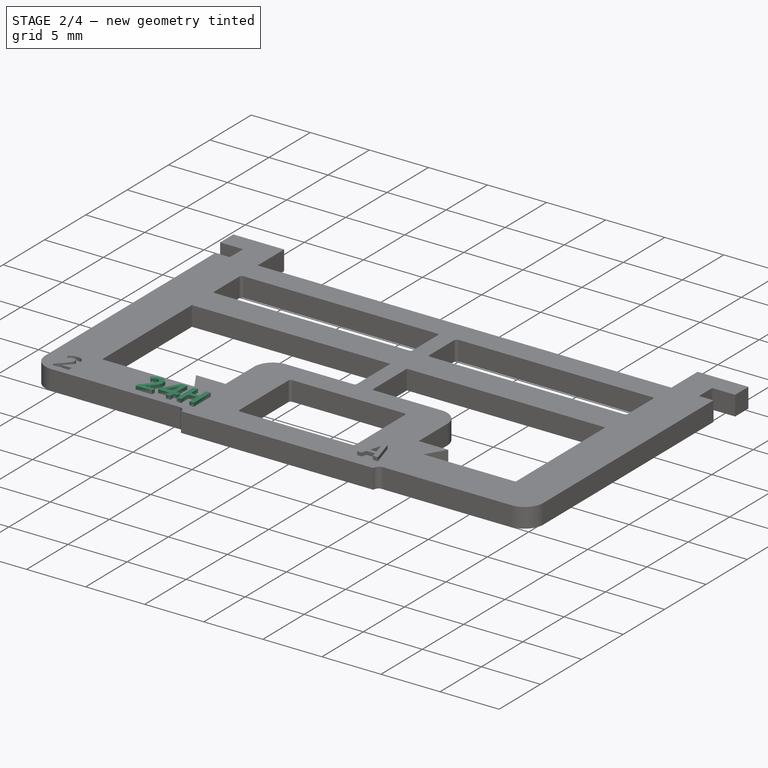
[diagram: stage 2 of 4 — iso view after this stage's code; geometry added in this stage tinted green]
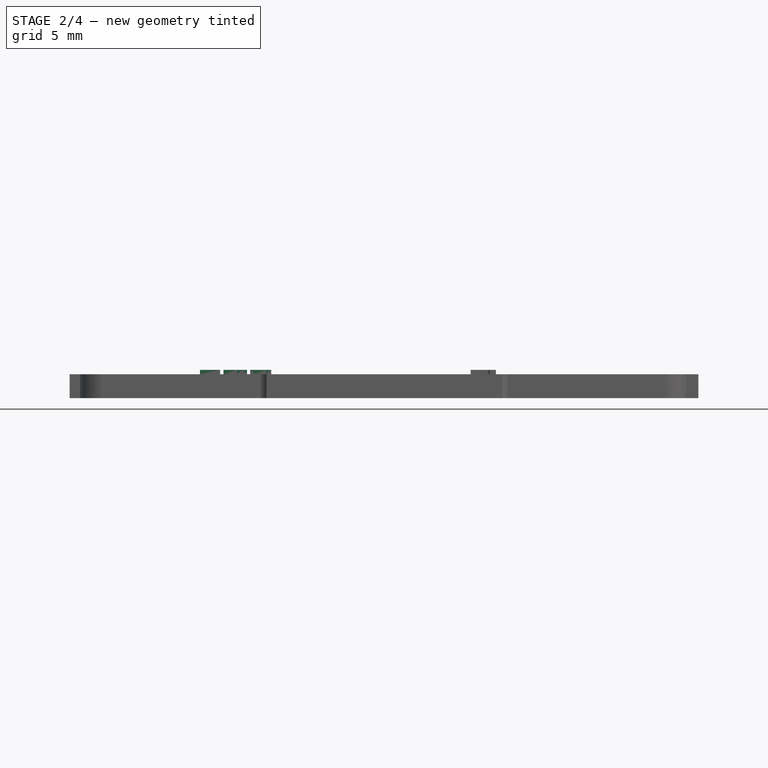
[diagram: stage 2 of 4 — front view after this stage's code; geometry added in this stage tinted green]
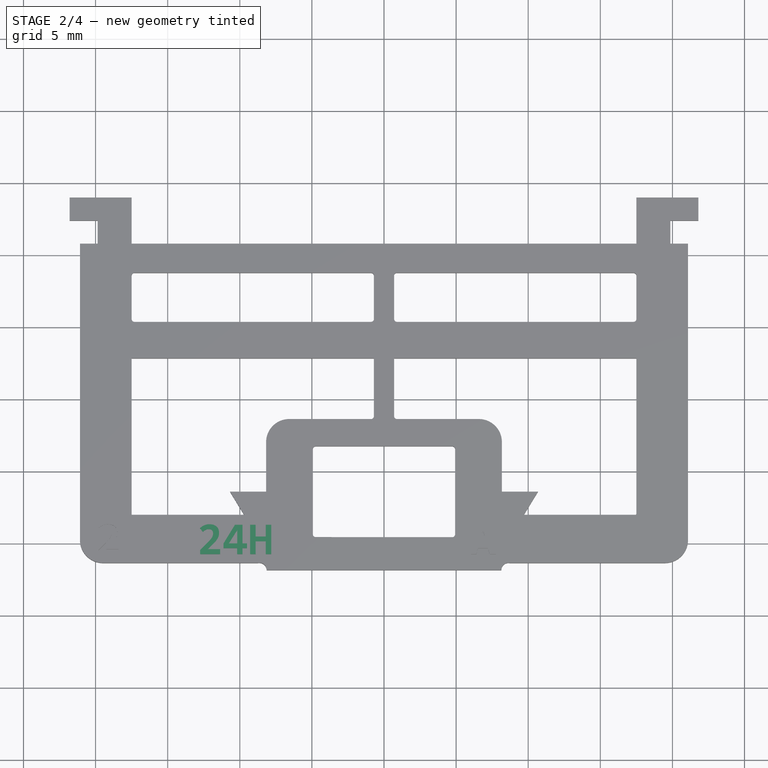
[diagram: stage 2 of 4 — top view after this stage's code; geometry added in this stage tinted green]
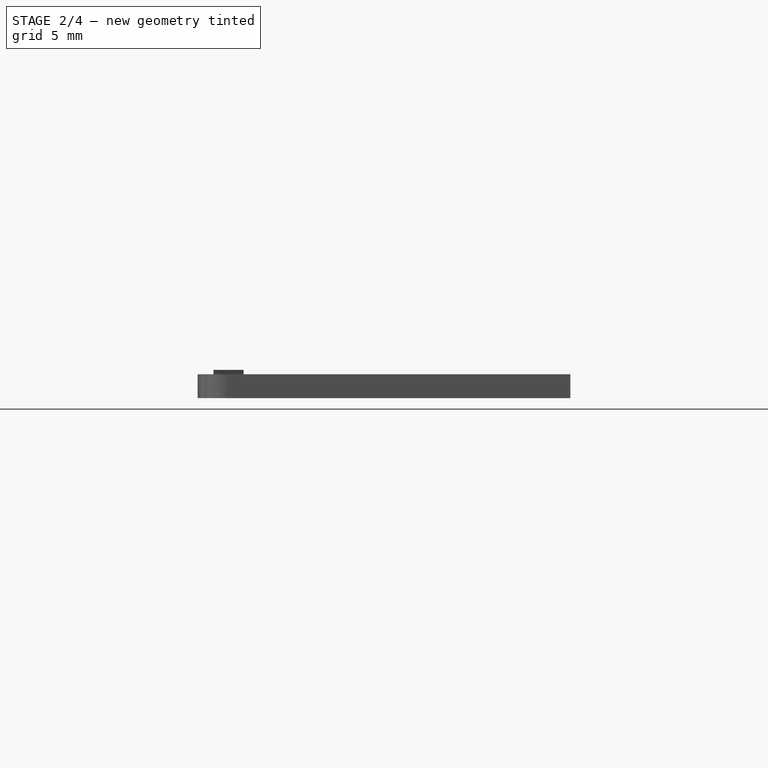
[diagram: stage 2 of 4 — right view after this stage's code; geometry added in this stage tinted green]
FEATURE [PartDesign::Pad] Pad002  label="RelayDatecodePad"
  BaseFeature = -> Pad001
  Direction = (0,0,1)
  Length = 0.3
  Length2 = 10
  Profile = -> ShapeString
  ReferenceAxis = -> ShapeString [N_Axis]
  Type = 0
  expr: Length = Spreadsheet.TextHeight
FEATURE [PartDesign::Pocket] Pocket002  label="P-19A130_Pocket"
  BaseFeature = -> Pad002
  Direction = (0,0,-1)
  Length = 0.001
  Length2 = 5
  Profile = -> Sketch004
  ReferenceAxis = -> Sketch004 [N_Axis]
  Type = 0
  expr: Length = Spreadsheet.CardNo == 0 ? 5 : 0.001
FEATURE [PartDesign::Pocket] Pocket001  label="P-19A131_Pocket"
  BaseFeature = -> Pocket002
  Direction = (0,0,-1)
  Length = 0.001
  Length2 = 5
  Profile = -> Sketch014
  ReferenceAxis = -> Sketch014 [N_Axis]
  Type = 0
  expr: Length = Spreadsheet.CardNo == 1 ? 5 : 0.001
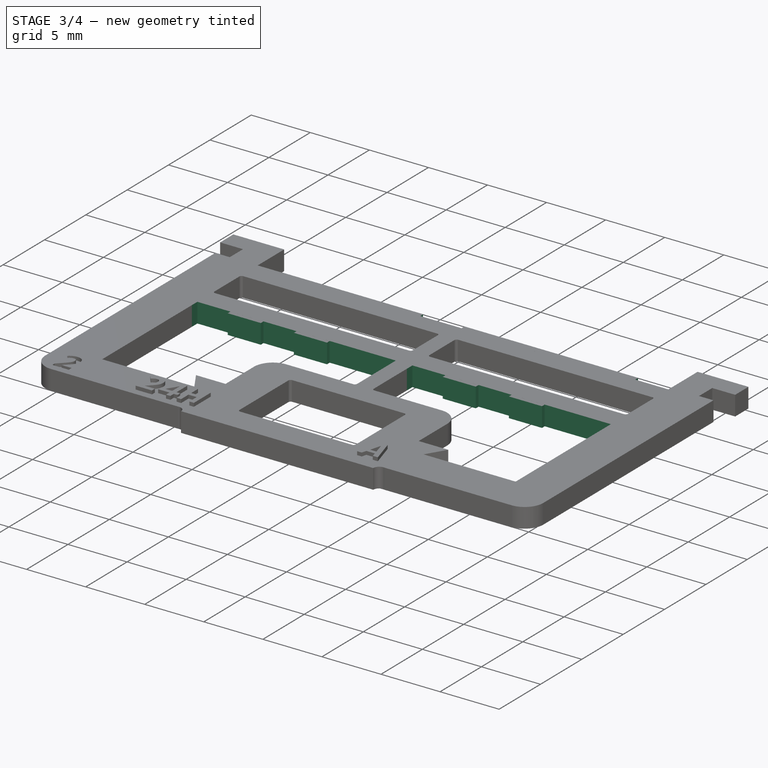
[diagram: stage 3 of 4 — iso view after this stage's code; geometry added in this stage tinted green]
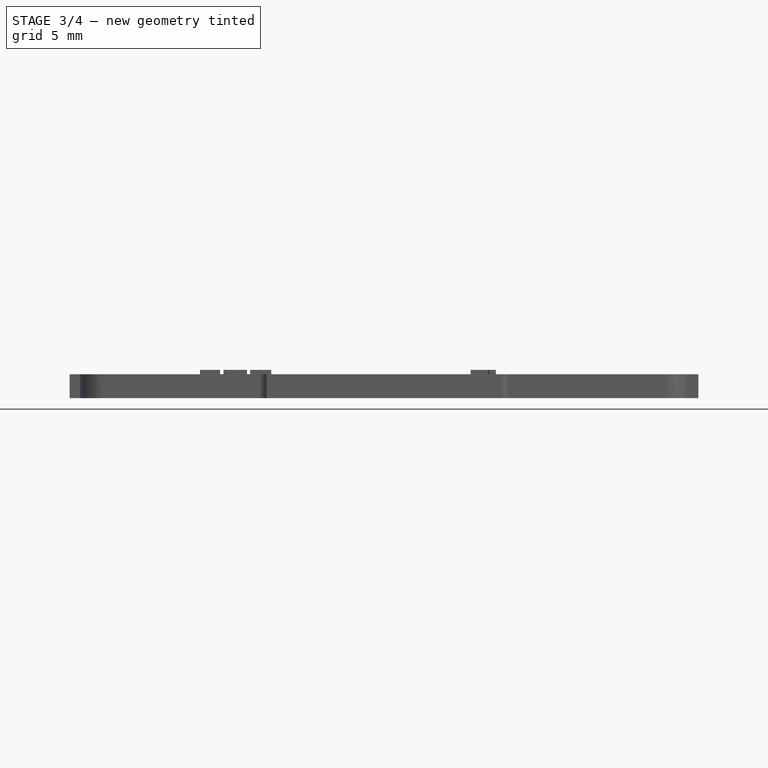
[diagram: stage 3 of 4 — front view after this stage's code; geometry added in this stage tinted green]
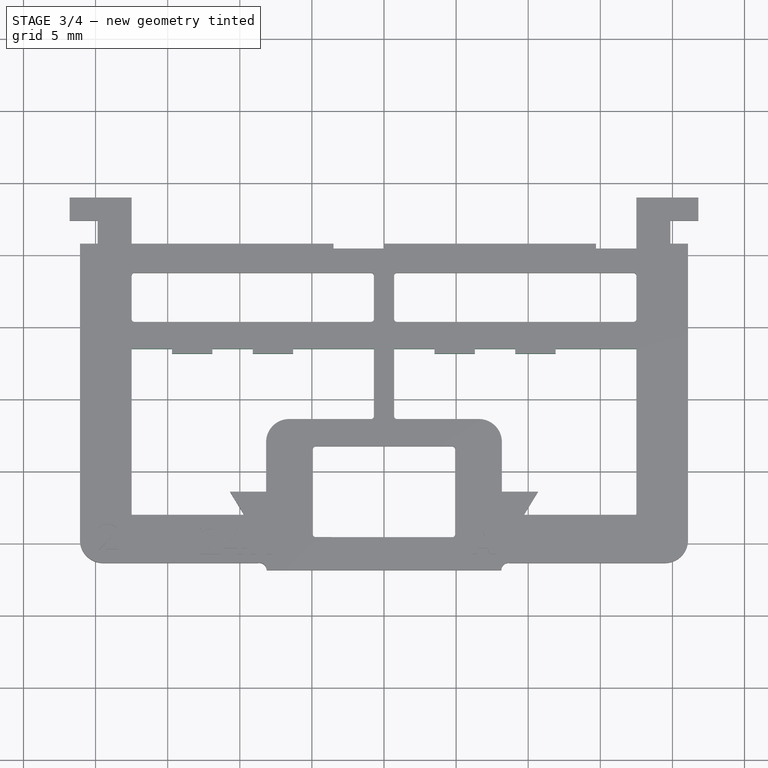
[diagram: stage 3 of 4 — top view after this stage's code; geometry added in this stage tinted green]
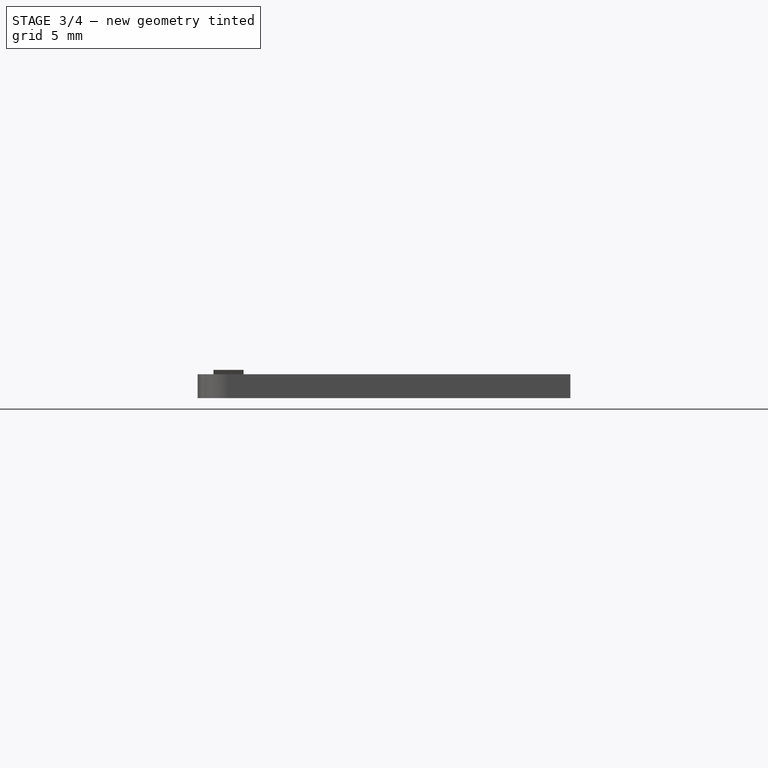
[diagram: stage 3 of 4 — right view after this stage's code; geometry added in this stage tinted green]
FEATURE [PartDesign::Pocket] Pocket003  label="P-19A132_Pocket"
  BaseFeature = -> Pocket001
  Direction = (0,0,-1)
  Length = 5
  Length2 = 5
  Profile = -> Sketch015
  ReferenceAxis = -> Sketch015 [N_Axis]
  Type = 0
  expr: Length = Spreadsheet.CardNo == 2 ? 5 : 0.001
FEATURE [PartDesign::Pocket] Pocket004  label="P-19A133_Pocket"
  BaseFeature = -> Pocket003
  Direction = (0,0,-1)
  Length = 0.001
  Length2 = 5
  Profile = -> Sketch019
  ReferenceAxis = -> Sketch019 [N_Axis]
  Type = 0
  expr: Length = Spreadsheet.CardNo == 3 ? 5 : 0.001
FEATURE [PartDesign::Pocket] Pocket005  label="P-19A134_Pocket"
  BaseFeature = -> Pocket004
  Direction = (0,0,-1)
  Length = 0.001
  Length2 = 5
  Profile = -> Sketch013
  ReferenceAxis = -> Sketch013 [N_Axis]
  Type = 0
  expr: Length = Spreadsheet.CardNo == 4 ? 5 : 0.001
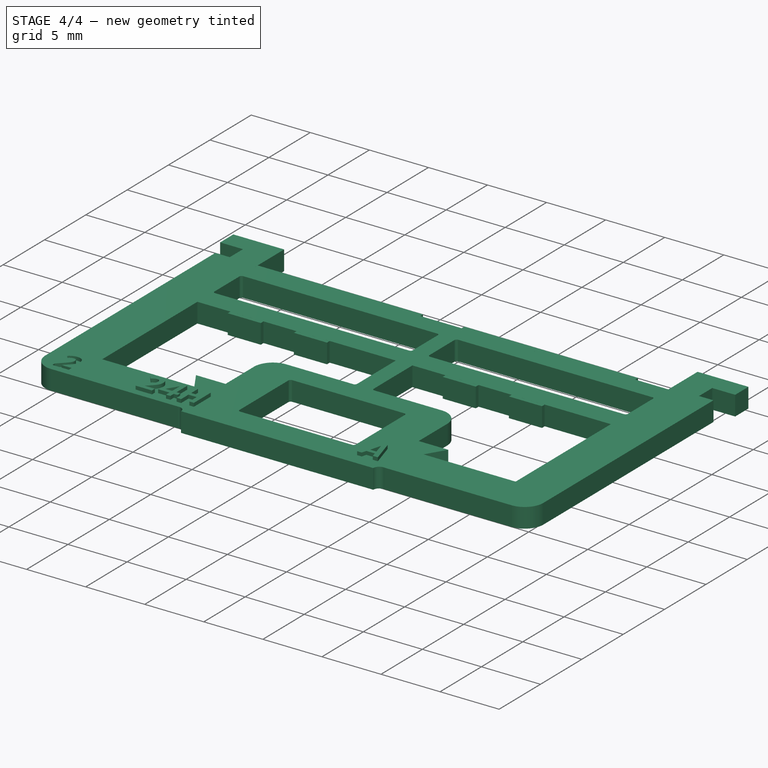
[diagram: stage 4 of 4 — iso view after this stage's code; geometry added in this stage tinted green]
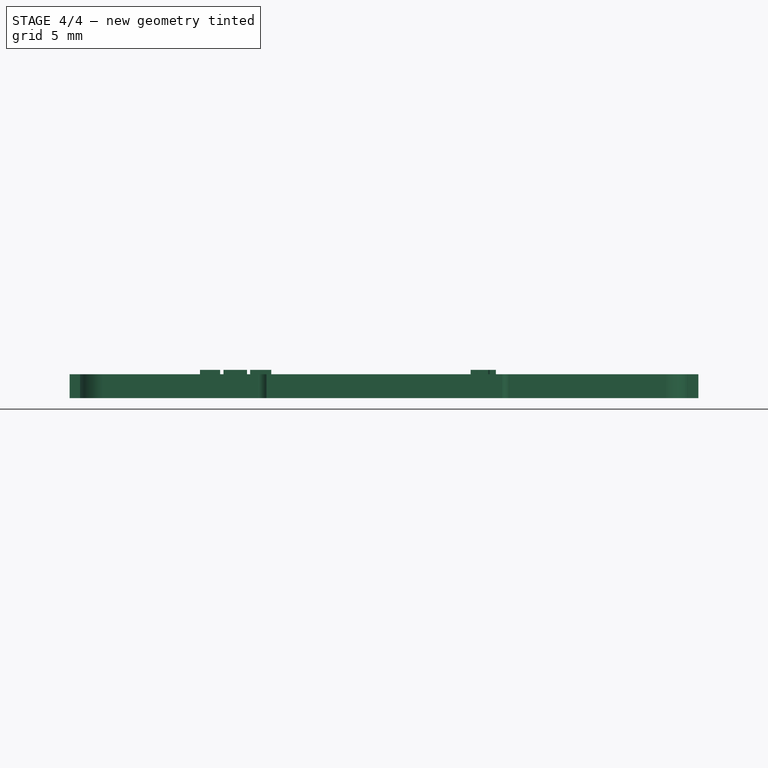
[diagram: stage 4 of 4 — front view after this stage's code; geometry added in this stage tinted green]
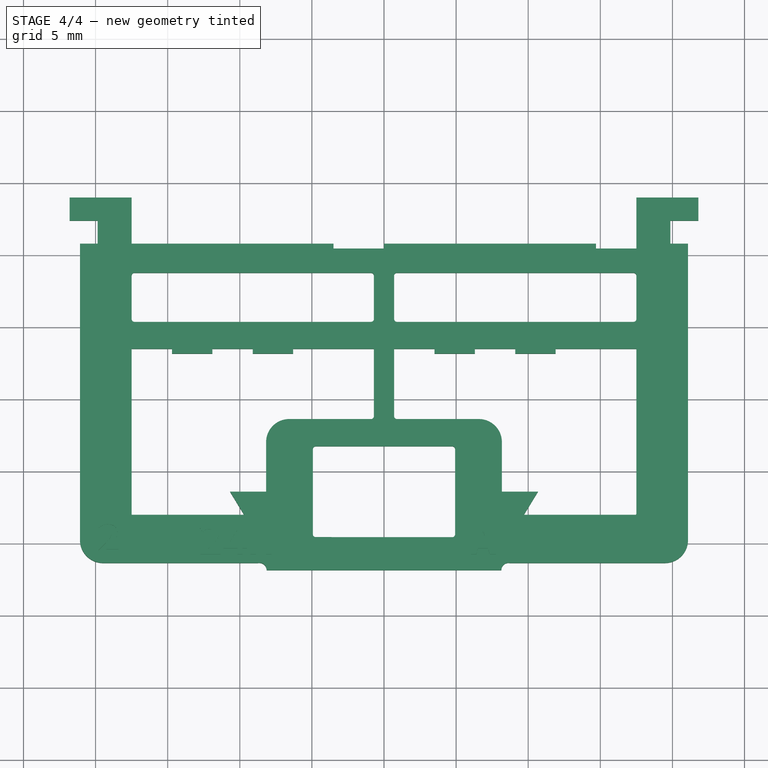
[diagram: stage 4 of 4 — top view after this stage's code; geometry added in this stage tinted green]
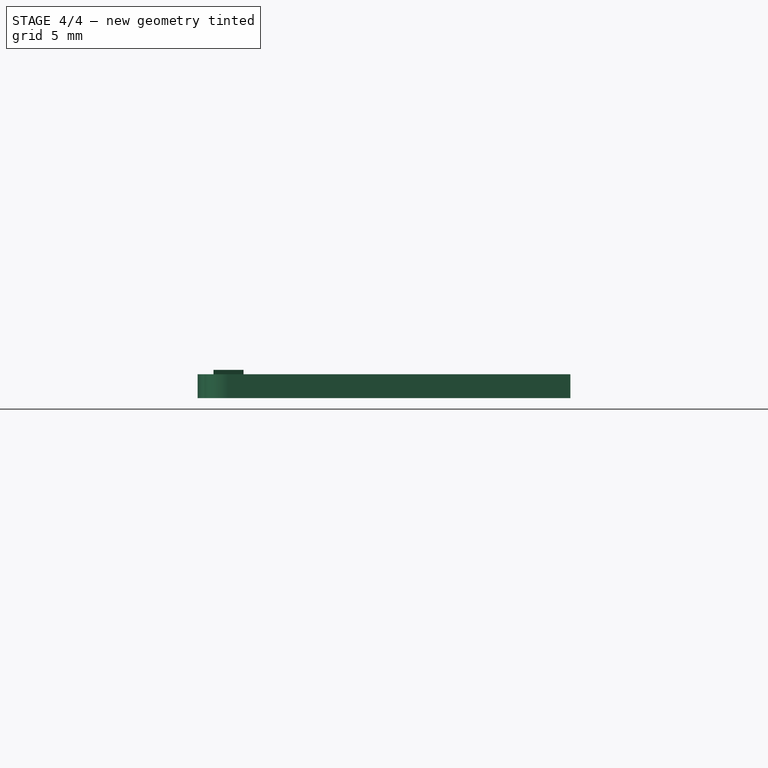
[diagram: stage 4 of 4 — right view after this stage's code; geometry added in this stage tinted green]
FEATURE [PartDesign::Pocket] Pocket006  label="P-19A135_Pocket"
  BaseFeature = -> Pocket005
  Direction = (0,0,-1)
  Length = 0.001
  Length2 = 5
  Profile = -> Sketch017
  ReferenceAxis = -> Sketch017 [N_Axis]
  Type = 0
  expr: Length = Spreadsheet.CardNo == 5 ? 5 : 0.001
FEATURE [PartDesign::Pocket] Pocket007  label="P-19A136_Pocket"
  BaseFeature = -> Pocket006
  Direction = (0,0,-1)
  Length = 0.001
  Length2 = 5
  Profile = -> Sketch018
  ReferenceAxis = -> Sketch018 [N_Axis]
  Type = 0
  expr: Length = Spreadsheet.CardNo == 6 ? 5 : 0.001
FEATURE [Sketcher::SketchObject] Sketch020  label="P-19A137"
  AttachmentOffset = pos=(0,0,1.66) rot=(0,0,1;0rad)
  FullyConstrained = true
  MapMode = 5
  Placement = pos=(0,0,1.66) rot=(0,0,1;0rad)
  Support = -> [XY_Plane]
  expr: .AttachmentOffset.Base.z = Spreadsheet.CardThickness
  expr: Constraints[162] = Spreadsheet.EM_Cutout
  expr: Constraints[25] = Spreadsheet.EB_Cutout
  expr: Constraints[5] = Spreadsheet.B_Cutout
  sketch-geometry (69):
    g0: LineSegment StartX=6.3 StartY=3.17 StartZ=0 EndX=3.5 EndY=3.17 EndZ=0
    g1: LineSegment StartX=-17.5 StartY=2.84 StartZ=0 EndX=-17.5 EndY=3.5 EndZ=0
    g2: LineSegment StartX=-17.5 StartY=2.84 StartZ=0 EndX=-0.7 EndY=2.84 EndZ=0
    g3: LineSegment StartX=0.7 StartY=3.5 StartZ=0 EndX=3.5 EndY=3.5 EndZ=0
    g4: LineSegment StartX=17.5 StartY=2.84 StartZ=0 EndX=17.5 EndY=3.17 EndZ=0
    g5: LineSegment StartX=3.5 StartY=3.5 StartZ=0 EndX=6.3 EndY=3.5 EndZ=0
    g6: LineSegment StartX=0.7 StartY=2.84 StartZ=0 EndX=17.5 EndY=2.84 EndZ=0
    g7: LineSegment StartX=-17.5 StartY=3.5 StartZ=0 EndX=-14.7 EndY=3.5 EndZ=0
    g8: LineSegment StartX=-14.7 StartY=3.5 StartZ=0 EndX=-14.7 EndY=3.17 EndZ=0
    g9: LineSegment StartX=-14.7 StartY=3.17 StartZ=0 EndX=-11.9 EndY=3.17 EndZ=0
    g10: LineSegment StartX=-11.9 StartY=3.17 StartZ=0 EndX=-11.9 EndY=3.5 EndZ=0
    g11: LineSegment StartX=-11.9 StartY=3.5 StartZ=0 EndX=-9.1 EndY=3.5 EndZ=0
    g12: LineSegment StartX=-9.1 StartY=3.5 StartZ=0 EndX=-9.1 EndY=3.17 EndZ=0
    g13: LineSegment StartX=-9.1 StartY=3.17 StartZ=0 EndX=-6.3 EndY=3.17 EndZ=0
    g14: LineSegment StartX=-6.3 StartY=3.17 StartZ=0 EndX=-6.3 EndY=3.5 EndZ=0
    g15: LineSegment StartX=-6.3 StartY=3.5 StartZ=0 EndX=-3.5 EndY=3.5 EndZ=0
    g16: LineSegment StartX=-3.5 StartY=3.5 StartZ=0 EndX=-3.5 EndY=3.17 EndZ=0
    g17: LineSegment StartX=-3.5 StartY=3.17 StartZ=0 EndX=-0.7 EndY=3.17 EndZ=0
    g18: LineSegment StartX=-0.7 StartY=3.17 StartZ=0 EndX=-0.7 EndY=2.84 EndZ=0
    g19: LineSegment StartX=-14.7 StartY=3.5 StartZ=0 EndX=-11.9 EndY=3.5 EndZ=0
    g20: LineSegment StartX=-9.1 StartY=3.5 StartZ=0 EndX=-6.3 EndY=3.5 EndZ=0
    g21: LineSegment StartX=-11.9 StartY=3.17 StartZ=0 EndX=-9.1 EndY=3.17 EndZ=0
    g22: LineSegment StartX=-6.3 StartY=3.17 StartZ=0 EndX=-3.5 EndY=3.17 EndZ=0
    g23: LineSegment StartX=-3.5 StartY=3.5 StartZ=0 EndX=0.7 EndY=3.5 EndZ=0
    g24: LineSegment StartX=0.7 StartY=3.5 StartZ=0 EndX=0.7 EndY=2.84 EndZ=0
    g25: LineSegment StartX=-0.7 StartY=3.17 StartZ=0 EndX=3.5 EndY=3.17 EndZ=0
    g26: LineSegment StartX=3.5 StartY=3.5 StartZ=0 EndX=3.5 EndY=3.17 EndZ=0
    g27: LineSegment StartX=6.3 StartY=3.5 StartZ=0 EndX=9.1 EndY=3.5 EndZ=0
    g28: LineSegment StartX=9.1 StartY=3.5 StartZ=0 EndX=9.1 EndY=3.17 EndZ=0
    g29: LineSegment StartX=9.1 StartY=3.17 StartZ=0 EndX=11.9 EndY=3.17 EndZ=0
    g30: LineSegment StartX=11.9 StartY=3.17 StartZ=0 EndX=11.9 EndY=3.5 EndZ=0
    g31: LineSegment StartX=11.9 StartY=3.5 StartZ=0 EndX=14.7 EndY=3.5 EndZ=0
    g32: LineSegment StartX=14.7 StartY=3.5 StartZ=0 EndX=14.7 EndY=3.17 EndZ=0
    g33: LineSegment StartX=9.1 StartY=3.5 StartZ=0 EndX=11.9 EndY=3.5 EndZ=0
    g34: LineSegment StartX=6.3 StartY=3.17 StartZ=0 EndX=9.1 EndY=3.17 EndZ=0
    g35: LineSegment StartX=11.9 StartY=3.17 StartZ=0 EndX=14.7 EndY=3.17 EndZ=0
    g36: LineSegment StartX=14.7 StartY=3.17 StartZ=0 EndX=17.5 EndY=3.17 EndZ=0
    g37: LineSegment StartX=6.3 StartY=3.5 StartZ=0 EndX=6.3 EndY=3.17 EndZ=0
    g38: LineSegment StartX=-17.5 StartY=10.79 StartZ=0 EndX=-17.5 EndY=10.46 EndZ=0
    g39: LineSegment StartX=-17.5 StartY=10.46 StartZ=0 EndX=-14.7 EndY=10.46 EndZ=0
    g40: LineSegment StartX=-14.7 StartY=10.46 StartZ=0 EndX=-14.7 EndY=10.79 EndZ=0
    g41: LineSegment StartX=-9.1 StartY=10.79 StartZ=0 EndX=-11.9 EndY=10.79 EndZ=0
    g42: LineSegment StartX=-11.9 StartY=10.79 StartZ=0 EndX=-11.9 EndY=10.46 EndZ=0
    g43: LineSegment StartX=-11.9 StartY=10.46 StartZ=0 EndX=-9.1 EndY=10.46 EndZ=0
    g44: LineSegment StartX=-9.1 StartY=10.46 StartZ=0 EndX=-9.1 EndY=10.79 EndZ=0
    g45: LineSegment StartX=-14.7 StartY=10.46 StartZ=0 EndX=-11.9 EndY=10.46 EndZ=0
    g46: LineSegment StartX=-17.5 StartY=10.79 StartZ=0 EndX=-14.7 EndY=10.79 EndZ=0
    g47: LineSegment StartX=0 StartY=10.79 StartZ=0 EndX=6.3 EndY=10.79 EndZ=0
    g48: LineSegment StartX=6.3 StartY=10.79 StartZ=0 EndX=9.1 EndY=10.79 EndZ=0
    g49: LineSegment StartX=9.1 StartY=10.79 StartZ=0 EndX=9.1 EndY=10.46 EndZ=0
    g50: LineSegment StartX=9.1 StartY=10.46 StartZ=0 EndX=6.3 EndY=10.46 EndZ=0
    g51: LineSegment StartX=6.3 StartY=10.46 StartZ=0 EndX=6.3 EndY=10.79 EndZ=0
    g52: LineSegment StartX=9.1 StartY=10.46 StartZ=0 EndX=11.9 EndY=10.46 EndZ=0
    g53: LineSegment StartX=11.9 StartY=10.46 StartZ=0 EndX=14.7 EndY=10.46 EndZ=0
    g54: LineSegment StartX=14.7 StartY=10.46 StartZ=0 EndX=14.7 EndY=10.79 EndZ=0
    g55: LineSegment StartX=14.7 StartY=10.79 StartZ=0 EndX=11.9 EndY=10.79 EndZ=0
    g56: LineSegment StartX=11.9 StartY=10.79 StartZ=0 EndX=11.9 EndY=10.46 EndZ=0
    g57: LineSegment StartX=0 StartY=10.79 StartZ=0 EndX=0 EndY=0 EndZ=0
    g58: LineSegment StartX=14.7 StartY=10.79 StartZ=0 EndX=17.5 EndY=10.79 EndZ=0
    g59: LineSegment StartX=-9.1 StartY=10.46 StartZ=0 EndX=-6.3 EndY=10.46 EndZ=0
    g60: LineSegment StartX=-6.3 StartY=10.46 StartZ=0 EndX=-3.5 EndY=10.46 EndZ=0
    g61: LineSegment StartX=-3.5 StartY=10.46 StartZ=0 EndX=-3.5 EndY=10.79 EndZ=0
    g62: LineSegment StartX=-3.5 StartY=10.79 StartZ=0 EndX=-6.3 EndY=10.79 EndZ=0
    g63: LineSegment StartX=-6.3 StartY=10.79 StartZ=0 EndX=-6.3 EndY=10.46 EndZ=0
    g64: LineSegment StartX=-3.5 StartY=10.46 StartZ=0 EndX=0 EndY=10.46 EndZ=0
    g65: LineSegment StartX=0 StartY=10.46 StartZ=0 EndX=3.5 EndY=10.46 EndZ=0
    g66: LineSegment StartX=3.5 StartY=10.46 StartZ=0 EndX=3.5 EndY=10.79 EndZ=0
    g67: LineSegment StartX=3.5 StartY=10.79 StartZ=0 EndX=0 EndY=10.79 EndZ=0
    g68: LineSegment StartX=0 StartY=10.79 StartZ=0 EndX=0 EndY=10.46 EndZ=0
  constraints (192):
    c: DistanceX(g2,g-1) = 0.7
    c: DistanceY(g-1,g2) = 2.84
    c: DistanceY(g-1,g6) = 2.84
    c: Horizontal(g0)
    c: Vertical(g1)
    c: DistanceY(g1,g1) = 0.66
    c: Coincident(g2,g1)
    c: Horizontal(g2)
    c: DistanceX(g2,g2) = 16.8
    c: Horizontal(g3)
    c: DistanceX(g3,g3) = 2.8
    c: Vertical(g4)
    c: Coincident(g5,g3)
    c: Horizontal(g5)
    c: Coincident(g6,g4)
    c: Horizontal(g6)
    c: DistanceX(g6,g6) = 16.8
    c: Coincident(g7,g1)
    c: Horizontal(g7)
    c: Coincident(g8,g7)
    c: Vertical(g8)
    c: Coincident(g9,g8)
    c: Horizontal(g9)
    c: DistanceX(g7,g7) = 2.8
    c: DistanceX(g9,g9) = 2.8
    c: DistanceY(g1,g8) = 0.33
    c: Coincident(g10,g9)
    c: Vertical(g10)
    c: Coincident(g11,g10)
    c: Horizontal(g11)
    c: Vertical(g12)
    c: Coincident(g13,g12)
    c: Horizontal(g13)
    c: Coincident(g14,g13)
    c: Vertical(g14)
    c: Coincident(g15,g14)
    c: Horizontal(g15)
    c: Coincident(g16,g15)
    c: Vertical(g16)
    c: Coincident(g17,g16)
    c: Horizontal(g17)
    c: Equal(g9,g11)
    c: Equal(g9,g13)
    c: Equal(g9,g15)
    c: Equal(g9,g17)
    c: Coincident(g11,g12)
    c: Coincident(g18,g17)
    c: Coincident(g18,g2)
    c: Coincident(g19,g7)
    c: Coincident(g19,g10)
    c: Horizontal(g19)
    c: Coincident(g20,g11)
    c: Coincident(g20,g14)
    c: Horizontal(g20)
    c: Coincident(g21,g9)
    c: Coincident(g21,g12)
    c: Horizontal(g21)
    c: Coincident(g22,g13)
    c: Coincident(g22,g16)
    c: Horizontal(g22)
    c: Coincident(g23,g15)
    c: Horizontal(g23)
    c: Coincident(g24,g23)
    c: Coincident(g24,g6)
    c: Vertical(g24)
    c: Coincident(g3,g24)
    c: Coincident(g25,g17)
    c: Horizontal(g25)
    c: Coincident(g0,g25)
    c: Coincident(g26,g3)
    c: Coincident(g26,g0)
    c: Vertical(g26)
    c: Horizontal(g27)
    c: Coincident(g28,g27)
    c: Vertical(g28)
    c: Coincident(g29,g28)
    c: Horizontal(g29)
    c: Coincident(g30,g29)
    c: Vertical(g30)
    c: Coincident(g31,g30)
    c: Horizontal(g31)
    c: Coincident(g32,g31)
    c: Vertical(g32)
    c: Coincident(g33,g27)
    c: Coincident(g33,g30)
    c: Horizontal(g33)
    c: Coincident(g34,g0)
    c: Coincident(g34,g28)
    c: Horizontal(g34)
    c: Coincident(g35,g29)
    c: Coincident(g35,g32)
    c: Horizontal(g35)
    c: Equal(g27,g3)
    c: Equal(g33,g3)
    c: Equal(g31,g3)
    c: Coincident(g36,g32)
    c: Horizontal(g36)
    c: Coincident(g4,g36)
    c: Equal(g5,g3)
    c: Equal(g0,g3)
    c: DistanceX(g-1,g6) = 0.7
    c: Coincident(g37,g27)
    c: Coincident(g37,g0)
    c: Vertical(g37)
    c: Equal(g37,g26)
    c: Horizontal(g39)
    c: Vertical(g38)
    c: Vertical(g40)
    c: Horizontal(g41)
    c: Horizontal(g43)
    c: Vertical(g42)
    c: Vertical(g44)
    c: DistanceX(g43,g43) = 2.8
    c: DistanceX(g45,g45) = 2.8
    c: Horizontal(g45)
    c: Horizontal(g46)
    c: Equal(g40,g42)
    c: DistanceX(g39,g39) = 2.8
    c: Horizontal(g47)
    c: Horizontal(g48)
    c: Horizontal(g50)
    c: Vertical(g49)
    c: Vertical(g51)
    c: Horizontal(g52)
    c: Horizontal(g53)
    c: Horizontal(g55)
    c: Vertical(g54)
    c: Vertical(g56)
    c: Equal(g50,g52)
    c: Equal(g50,g53)
    c: Equal(g51,g56)
    c: DistanceX(g50,g50) = 2.8
    c: DistanceX(g47,g48) = 6.3
    c: DistanceX(g41,g47) = 9.1
    c: Coincident(g46,g38)
    c: Coincident(g38,g39)
    c: Coincident(g40,g39)
    c: Coincident(g45,g39)
    c: Coincident(g46,g40)
    c: Coincident(g42,g45)
    c: Coincident(g43,g44)
    c: Coincident(g44,g41)
    c: Coincident(g48,g51)
    c: Coincident(g47,g48)
    c: Coincident(g50,g51)
    c: Coincident(g49,g50)
    c: Coincident(g56,g53)
    c: Coincident(g53,g52)
    c: Coincident(g55,g56)
    c: Coincident(g54,g53)
    c: Coincident(g55,g54)
    c: Coincident(g42,g41)
    c: Coincident(g49,g48)
    c: Coincident(g52,g49)
    c: Coincident(g42,g43)
    c: Coincident(g57,g47)
    c: Coincident(g57,g-1)
    c: DistanceY(g57,g57) = 10.79
    c: Coincident(g58,g54)
    c: Horizontal(g58)
    c: Symmetric(g38,g58,g57)
    c: Equal(g51,g44)
    c: DistanceY(g38,g38) = 0.33
    c: Coincident(g59,g43)
    c: Horizontal(g59)
    c: Equal(g43,g59)
    c: Coincident(g60,g61)
    c: Coincident(g61,g62)
    c: Coincident(g62,g63)
    c: Coincident(g63,g60)
    c: Horizontal(g60)
    c: Horizontal(g62)
    c: Vertical(g61)
    c: Vertical(g63)
    c: Coincident(g60,g59)
    c: Equal(g60,g43)
    c: Equal(g63,g44)
    c: Coincident(g64,g60)
    c: PointOnObject(g64,g57)
    c: Horizontal(g64)
    c: Coincident(g65,g66)
    c: Coincident(g66,g67)
    c: Coincident(g67,g68)
    c: Coincident(g68,g65)
    c: Horizontal(g65)
    c: Horizontal(g67)
    c: Vertical(g66)
    c: Vertical(g68)
    c: Coincident(g65,g64)
    c: PointOnObject(g66,g47)
    c: DistanceX(g65,g65) = 3.5
    c: Equal(g66,g61)
FEATURE [PartDesign::Pocket] Pocket008  label="P-19A137_Pocket"
  BaseFeature = -> Pocket007
  Direction = (0,0,-1)
  Length = 0.001
  Length2 = 5
  Profile = -> Sketch020
  ReferenceAxis = -> Sketch020 [N_Axis]
  Type = 0
  expr: Length = Spreadsheet.CardNo == 7 ? 5 : 0.001
FEATURE [PartDesign::Body] Body
  Group = -> [Pad,Sketch,ShapeString001,ShapeString,Sketch003,Sketch011,Sketch007,Sketch008,Sketch002,Sketch012,Sketch009,Pocket,Pad001,Pad002,ShapeString002,Sketch004,Sketch014,Sketch015,Sketch019,Sketch013,Sketch017,Sketch018,Pocket002,Pocket001,Pocket003,Pocket004,Pocket005,Pocket006,Pocket007,Sketch020,Pocket008]
  Origin = -> Origin
  Tip = -> Pocket008
note: 3 file-system paths scrubbed to <path> (originals preserved in the JSON sidecar)
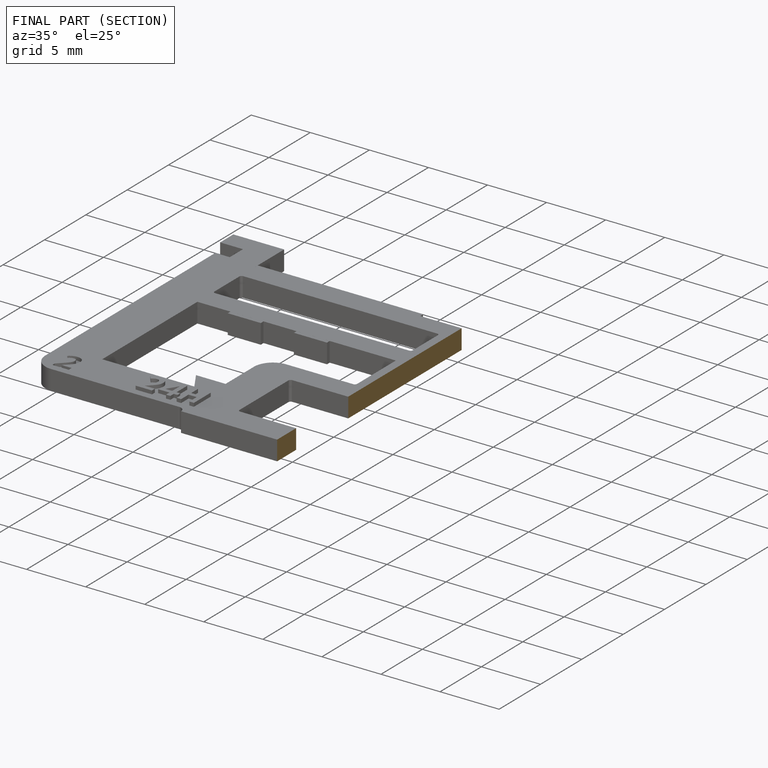
[diagram: finished part — half-section view (interior)]
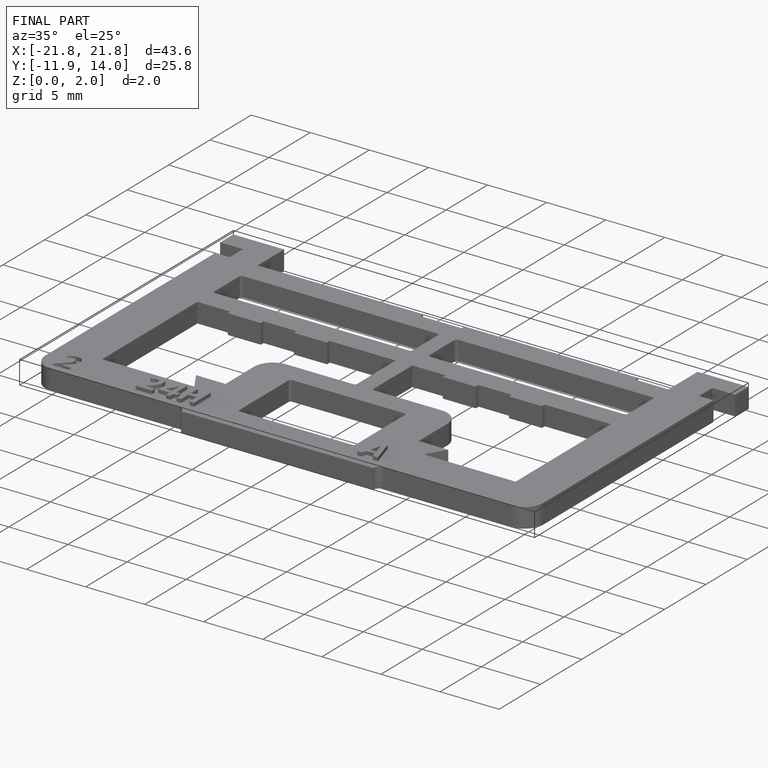
[diagram: finished part — iso view with bounding-box wireframe]
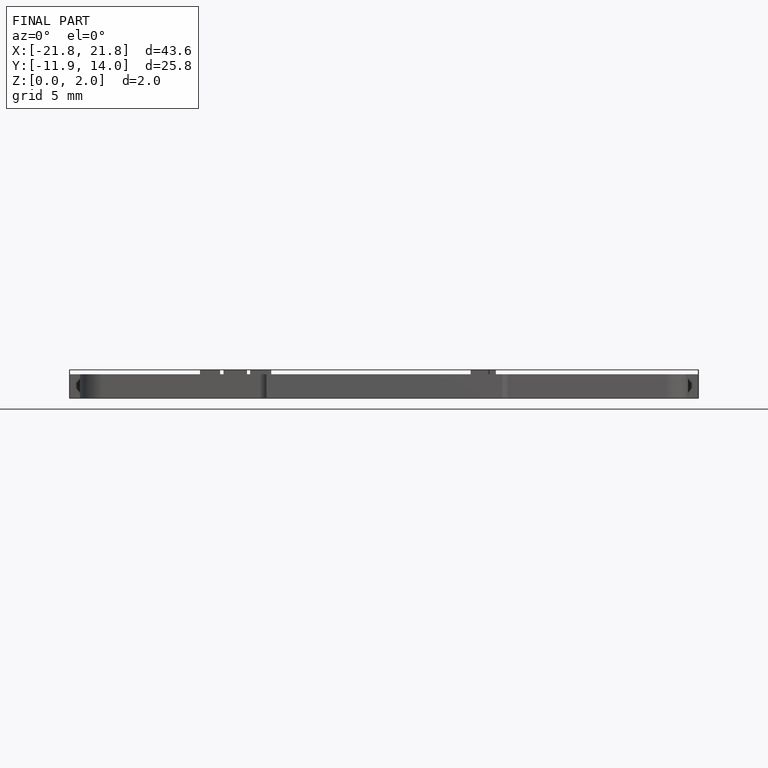
[diagram: finished part — front view with bounding-box wireframe]
